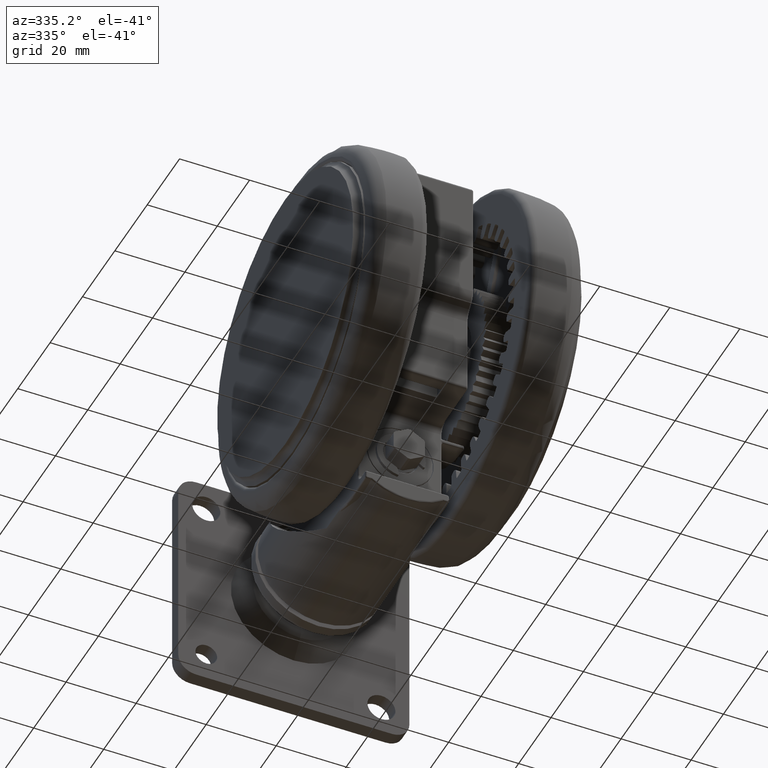
[diagram: clean part render]
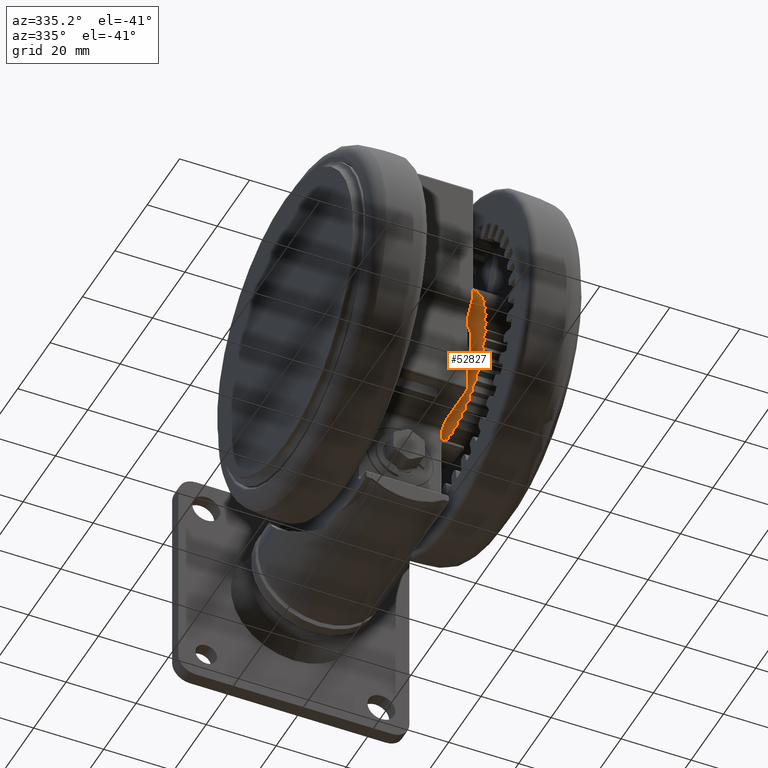
[diagram: same view with one face highlighted and labeled with its STEP entity id]
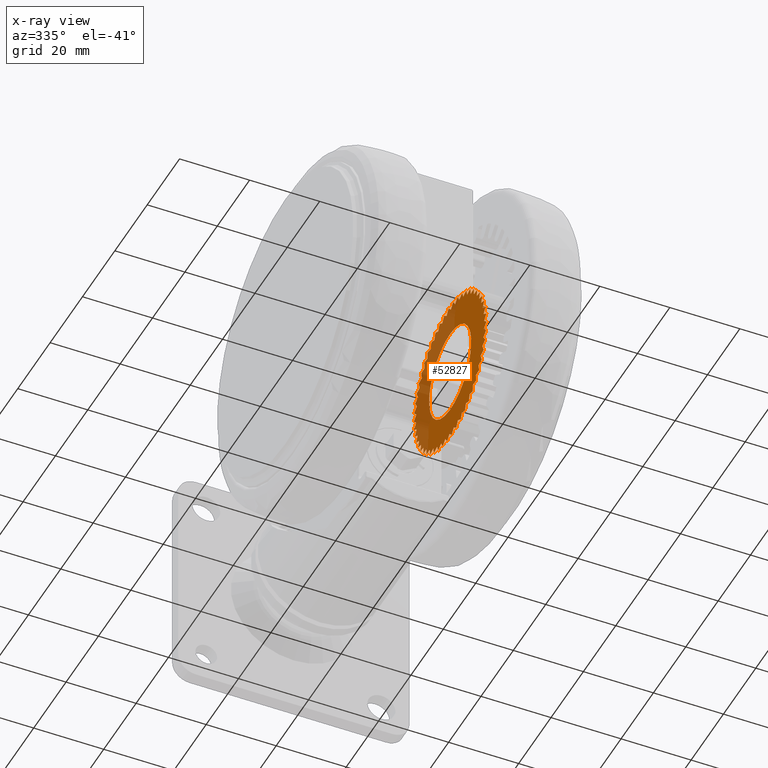
[diagram: x-ray of the same camera — body ghosted, the highlighted face saturated]
A machine part, auxiliary view. The second image highlights one B-rep face of the part: STEP entity #52827.
The next image is the same camera in x-ray: the body ghosted, the highlighted face saturated — about 39% of this face is hidden behind the body in this view.
In plain terms, the highlighted planar face has unit normal (-1, -0, 0).
Its self-contained STEP definition (entity closure, byte-faithful):
#135 = VERTEX_POINT ( 'NONE', #52497 ) ;
#155 = CARTESIAN_POINT ( 'NONE',  ( 13.50738607663565800, -5.605993558018629300, -18.09999999999995200 ) ) ;
#384 = VERTEX_POINT ( 'NONE', #72703 ) ;
#438 = LINE ( 'NONE', #78907, #32407 ) ;
#448 = ORIENTED_EDGE ( 'NONE', *, *, #42750, .T. ) ;
#469 = CARTESIAN_POINT ( 'NONE',  ( 11.68887279930216600, 8.789021280982762400, -18.09999999999995200 ) ) ;
#495 = VERTEX_POINT ( 'NONE', #53357 ) ;
#734 = EDGE_CURVE ( 'NONE', #45014, #51667, #5342, .T. ) ;
#833 = LINE ( 'NONE', #36704, #66923 ) ;
#927 = ORIENTED_EDGE ( 'NONE', *, *, #6779, .T. ) ;
#945 = LINE ( 'NONE', #72621, #67033 ) ;
#995 = LINE ( 'NONE', #58762, #82111 ) ;
#1018 = EDGE_CURVE ( 'NONE', #48748, #9041, #34206, .T. ) ;
#1027 = VECTOR ( 'NONE', #46402, 1000.000000000000100 ) ;
#1236 = CARTESIAN_POINT ( 'NONE',  ( -14.53732064245324000, -1.594663266755376200, -18.09999999999995200 ) ) ;
#1272 = ORIENTED_EDGE ( 'NONE', *, *, #54236, .T. ) ;
#1403 = VECTOR ( 'NONE', #9428, 1000.000000000000100 ) ;
#1488 = LINE ( 'NONE', #61659, #33455 ) ;
#1501 = VERTEX_POINT ( 'NONE', #49019 ) ;
#1621 = ORIENTED_EDGE ( 'NONE', *, *, #72191, .T. ) ;
#1730 = VERTEX_POINT ( 'NONE', #45075 ) ;
#1760 = ORIENTED_EDGE ( 'NONE', *, *, #37940, .F. ) ;
#1769 = ORIENTED_EDGE ( 'NONE', *, *, #26212, .T. ) ;
#1781 = DIRECTION ( 'NONE',  ( 0.7599523800599921100, -0.6499787535305698900, 0.0000000000000000000 ) ) ;
#1897 = VERTEX_POINT ( 'NONE', #78685 ) ;
#1903 = CARTESIAN_POINT ( 'NONE',  ( -3.469446951953614200E-015, -1.387778780781445700E-013, -18.09999999999995200 ) ) ;
#2053 = EDGE_CURVE ( 'NONE', #35573, #37455, #12220, .T. ) ;
#2101 = EDGE_CURVE ( 'NONE', #69640, #7843, #25235, .T. ) ;
#2153 = VERTEX_POINT ( 'NONE', #4806 ) ;
#2176 = DIRECTION ( 'NONE',  ( -0.0000000000000000000, 0.0000000000000000000, -1.000000000000000000 ) ) ;
#2186 = DIRECTION ( 'NONE',  ( -0.0000000000000000000, 0.0000000000000000000, -1.000000000000000000 ) ) ;
#2232 = ORIENTED_EDGE ( 'NONE', *, *, #10268, .T. ) ;
#2277 = CARTESIAN_POINT ( 'NONE',  ( -8.037727759365669300, -12.21767469128890800, -18.09999999999995200 ) ) ;
#2449 = VERTEX_POINT ( 'NONE', #33742 ) ;
#2491 = CARTESIAN_POINT ( 'NONE',  ( -3.469446951953614200E-015, -1.387778780781445700E-013, -18.09999999999995200 ) ) ;
#2513 = DIRECTION ( 'NONE',  ( -0.4960649668394147000, -0.8682854073832004800, 0.0000000000000000000 ) ) ;
#2586 = CARTESIAN_POINT ( 'NONE',  ( -19.00146984768217000, -8.941148898638728000, -18.09999999999995200 ) ) ;
#2606 = ORIENTED_EDGE ( 'NONE', *, *, #28074, .F. ) ;
#2638 = DIRECTION ( 'NONE',  ( 3.597816489175897900E-015, -1.000000000000000000, 0.0000000000000000000 ) ) ;
#2731 = ORIENTED_EDGE ( 'NONE', *, *, #36483, .F. ) ;
#2794 = CARTESIAN_POINT ( 'NONE',  ( 16.40179411698165200, -15.40230988339572900, -18.09999999999995200 ) ) ;
#2860 = EDGE_CURVE ( 'NONE', #1730, #8336, #51487, .T. ) ;
#2865 = ORIENTED_EDGE ( 'NONE', *, *, #7431, .T. ) ;
#2948 = CIRCLE ( 'NONE', #51711, 21.00000000000000000 ) ;
#3058 = ORIENTED_EDGE ( 'NONE', *, *, #58852, .T. ) ;
#3081 = EDGE_CURVE ( 'NONE', #37652, #40193, #78529, .T. ) ;
#3261 = AXIS2_PLACEMENT_3D ( 'NONE', #43998, #5737, #50435 ) ;
#3285 = CARTESIAN_POINT ( 'NONE',  ( -20.62798748604893700, -3.935242340111933000, -18.09999999999995200 ) ) ;
#3440 = CARTESIAN_POINT ( 'NONE',  ( -11.68887279930215500, 8.789021280982728600, -18.09999999999995200 ) ) ;
#3520 = DIRECTION ( 'NONE',  ( 0.2645463737174724700, -0.9643729652748128700, 0.0000000000000000000 ) ) ;
#3579 = VERTEX_POINT ( 'NONE', #28529 ) ;
#3608 = CIRCLE ( 'NONE', #4124, 21.00000000000000000 ) ;
#3718 = CARTESIAN_POINT ( 'NONE',  ( 20.62807704188491100, -3.934772871979098900, -18.09999999999995200 ) ) ;
#3766 = VERTEX_POINT ( 'NONE', #24082 ) ;
#3853 = VECTOR ( 'NONE', #23646, 1000.000000000000100 ) ;
#3925 = CARTESIAN_POINT ( 'NONE',  ( 21.79312112539422600, 5.595522461209030000, -18.09999999999995200 ) ) ;
#4017 = VECTOR ( 'NONE', #44294, 1000.000000000000000 ) ;
#4018 = CARTESIAN_POINT ( 'NONE',  ( -12.34368362556614500, 16.98921641959761800, -18.09999999999995200 ) ) ;
#4124 = AXIS2_PLACEMENT_3D ( 'NONE', #32802, #77636, #39219 ) ;
#4148 = VECTOR ( 'NONE', #81730, 999.9999999999998900 ) ;
#4223 = CARTESIAN_POINT ( 'NONE',  ( 5.222256170879929500, -20.34030581101752200, -18.09999999999995200 ) ) ;
#4225 = CARTESIAN_POINT ( 'NONE',  ( 10.82361990185118100, 9.834932364591219700, -18.09999999999995200 ) ) ;
#4262 = CARTESIAN_POINT ( 'NONE',  ( -3.469446951953614200E-015, -1.387778780781445700E-013, -18.09999999999995200 ) ) ;
#4322 = CARTESIAN_POINT ( 'NONE',  ( 19.71690030098688200, -10.83945766728880900, -18.09999999999995200 ) ) ;
#4340 = VERTEX_POINT ( 'NONE', #57266 ) ;
#4355 = VERTEX_POINT ( 'NONE', #63988 ) ;
#4441 = CARTESIAN_POINT ( 'NONE',  ( -3.469446951953614200E-015, -1.387778780781445700E-013, -18.09999999999995200 ) ) ;
#4583 = EDGE_CURVE ( 'NONE', #10637, #35355, #61283, .T. ) ;
#4594 = VECTOR ( 'NONE', #19370, 999.9999999999998900 ) ;
#4770 = LINE ( 'NONE', #59768, #36697 ) ;
#4779 = CARTESIAN_POINT ( 'NONE',  ( -6.443067199534176800, -13.12872908769642200, -18.09999999999995200 ) ) ;
#4806 = CARTESIAN_POINT ( 'NONE',  ( 12.05610288702730400, -18.99737832379554400, -18.09999999999995200 ) ) ;
#4822 = CARTESIAN_POINT ( 'NONE',  ( -20.91997093248572500, -8.282802435405193000, -18.09999999999995200 ) ) ;
#4833 = CARTESIAN_POINT ( 'NONE',  ( -20.91997093248568600, 8.282802435405056200, -18.09999999999995200 ) ) ;
#4839 = LINE ( 'NONE', #43628, #36765 ) ;
#4906 = EDGE_CURVE ( 'NONE', #1501, #36122, #56208, .T. ) ;
#4934 = AXIS2_PLACEMENT_3D ( 'NONE', #33866, #78710, #40283 ) ;
#4964 = CARTESIAN_POINT ( 'NONE',  ( -2.632234987181233600, 20.83437877576994900, -18.09999999999995200 ) ) ;
#5007 = CARTESIAN_POINT ( 'NONE',  ( -3.469446951953614200E-015, -1.387778780781445700E-013, -18.09999999999995200 ) ) ;
#5021 = EDGE_CURVE ( 'NONE', #52361, #11531, #31133, .T. ) ;
#5121 = DIRECTION ( 'NONE',  ( 3.597816489175897900E-015, -1.000000000000000000, 0.0000000000000000000 ) ) ;
#5251 = ORIENTED_EDGE ( 'NONE', *, *, #76017, .T. ) ;
#5342 = CIRCLE ( 'NONE', #44730, 13.00000000000000000 ) ;
#5371 = ORIENTED_EDGE ( 'NONE', *, *, #12744, .F. ) ;
#5383 = ORIENTED_EDGE ( 'NONE', *, *, #41850, .T. ) ;
#5414 = EDGE_CURVE ( 'NONE', #80669, #18686, #54097, .T. ) ;
#5737 = DIRECTION ( 'NONE',  ( -0.0000000000000000000, 0.0000000000000000000, -1.000000000000000000 ) ) ;
#5801 = VERTEX_POINT ( 'NONE', #12897 ) ;
#5910 = VERTEX_POINT ( 'NONE', #32979 ) ;
#5913 = EDGE_CURVE ( 'NONE', #38443, #53812, #995, .T. ) ;
#5924 = VERTEX_POINT ( 'NONE', #78092 ) ;
#5973 = VERTEX_POINT ( 'NONE', #34059 ) ;
#5977 = DIRECTION ( 'NONE',  ( 0.1415923644446550300, 0.9899250488450992400, 0.0000000000000000000 ) ) ;
#6006 = VECTOR ( 'NONE', #69593, 1000.000000000000100 ) ;
#6011 = EDGE_CURVE ( 'NONE', #14404, #54596, #7926, .T. ) ;
#6039 = DIRECTION ( 'NONE',  ( -0.0000000000000000000, 0.0000000000000000000, -1.000000000000000000 ) ) ;
#6147 = CARTESIAN_POINT ( 'NONE',  ( 16.18062577405629600, 13.38608791095968100, -18.09999999999995200 ) ) ;
#6191 = VECTOR ( 'NONE', #60997, 1000.000000000000000 ) ;
#6240 = DIRECTION ( 'NONE',  ( 3.597816489175897900E-015, -1.000000000000000000, 0.0000000000000000000 ) ) ;
#6408 = DIRECTION ( 'NONE',  ( 3.597816489175897900E-015, -1.000000000000000000, 0.0000000000000000000 ) ) ;
#6457 = VECTOR ( 'NONE', #20409, 1000.000000000000000 ) ;
#6496 = CARTESIAN_POINT ( 'NONE',  ( -12.92942419941392800, 6.834225067075563800, -18.09999999999995200 ) ) ;
#6629 = ORIENTED_EDGE ( 'NONE', *, *, #57507, .T. ) ;
#6644 = LINE ( 'NONE', #18100, #21634 ) ;
#6655 = DIRECTION ( 'NONE',  ( -0.2327664647555010800, 0.9725326590327062500, 0.0000000000000000000 ) ) ;
#6711 = VECTOR ( 'NONE', #71910, 1000.000000000000200 ) ;
#6761 = LINE ( 'NONE', #60212, #72834 ) ;
#6779 = EDGE_CURVE ( 'NONE', #80729, #81442, #833, .T. ) ;
#6785 = DIRECTION ( 'NONE',  ( -0.7808667188357941700, 0.6246976608045053900, 0.0000000000000000000 ) ) ;
#6889 = ORIENTED_EDGE ( 'NONE', *, *, #55521, .F. ) ;
#6957 = AXIS2_PLACEMENT_3D ( 'NONE', #4441, #49122, #10837 ) ;
#6977 = CARTESIAN_POINT ( 'NONE',  ( -12.05610288702747100, 18.99737832379521800, -18.09999999999995200 ) ) ;
#6979 = CARTESIAN_POINT ( 'NONE',  ( 13.50738607663571700, 5.605993558018279400, -18.09999999999995200 ) ) ;
#6988 = CARTESIAN_POINT ( 'NONE',  ( -3.469446951953614200E-015, -1.387778780781445700E-013, -18.09999999999995200 ) ) ;
#6998 = LINE ( 'NONE', #69337, #71092 ) ;
#7148 = CIRCLE ( 'NONE', #9953, 21.00000000000000000 ) ;
#7165 = LINE ( 'NONE', #46671, #20159 ) ;
#7193 = EDGE_CURVE ( 'NONE', #32259, #41576, #6761, .T. ) ;
#7249 = DIRECTION ( 'NONE',  ( 0.3833283286444277300, -0.9236121439536564300, 0.0000000000000000000 ) ) ;
#7338 = ORIENTED_EDGE ( 'NONE', *, *, #64399, .T. ) ;
#7420 = ORIENTED_EDGE ( 'NONE', *, *, #8650, .T. ) ;
#7431 = EDGE_CURVE ( 'NONE', #31773, #54996, #26709, .T. ) ;
#7701 = ORIENTED_EDGE ( 'NONE', *, *, #60542, .T. ) ;
#7712 = CIRCLE ( 'NONE', #24325, 21.00000000000000000 ) ;
#7718 = VERTEX_POINT ( 'NONE', #9488 ) ;
#7729 = VERTEX_POINT ( 'NONE', #60429 ) ;
#7843 = VERTEX_POINT ( 'NONE', #61550 ) ;
#7879 = VECTOR ( 'NONE', #34472, 1000.000000000000000 ) ;
#7926 = LINE ( 'NONE', #59840, #74050 ) ;
#8124 = ORIENTED_EDGE ( 'NONE', *, *, #18368, .T. ) ;
#8141 = CARTESIAN_POINT ( 'NONE',  ( -12.69825900299371700, -7.254712998370595600, -18.09999999999995200 ) ) ;
#8215 = EDGE_CURVE ( 'NONE', #68575, #71648, #19584, .T. ) ;
#8297 = DIRECTION ( 'NONE',  ( 3.597816489175897900E-015, -1.000000000000000000, 0.0000000000000000000 ) ) ;
#8329 = LINE ( 'NONE', #12809, #23382 ) ;
#8336 = VERTEX_POINT ( 'NONE', #69587 ) ;
#8385 = CARTESIAN_POINT ( 'NONE',  ( 11.68887279930208900, -8.789021280983096300, -18.09999999999995200 ) ) ;
#8463 = CIRCLE ( 'NONE', #50863, 21.00000000000000000 ) ;
#8642 = ORIENTED_EDGE ( 'NONE', *, *, #34829, .T. ) ;
#8650 = EDGE_CURVE ( 'NONE', #384, #64550, #54708, .T. ) ;
#8704 = ORIENTED_EDGE ( 'NONE', *, *, #66475, .F. ) ;
#8736 = VECTOR ( 'NONE', #59356, 1000.000000000000200 ) ;
#8853 = CARTESIAN_POINT ( 'NONE',  ( -3.469446951953614200E-015, -1.387778780781445700E-013, -18.09999999999995200 ) ) ;
#8871 = VECTOR ( 'NONE', #65666, 1000.000000000000000 ) ;
#8903 = DIRECTION ( 'NONE',  ( 3.597816489175897900E-015, -1.000000000000000000, 0.0000000000000000000 ) ) ;
#8947 = CARTESIAN_POINT ( 'NONE',  ( -21.79312112539422600, 5.595522461209023700, -18.09999999999995200 ) ) ;
#9041 = VERTEX_POINT ( 'NONE', #14609 ) ;
#9081 = CARTESIAN_POINT ( 'NONE',  ( 19.00146984768211700, 8.941148898638587600, -18.09999999999995200 ) ) ;
#9120 = ORIENTED_EDGE ( 'NONE', *, *, #56713, .T. ) ;
#9126 = VECTOR ( 'NONE', #62894, 1000.000000000000100 ) ;
#9175 = DIRECTION ( 'NONE',  ( -0.0000000000000000000, 0.0000000000000000000, -1.000000000000000000 ) ) ;
#9415 = DIRECTION ( 'NONE',  ( 0.9852291152350595200, 0.1712413223878559200, 0.0000000000000000000 ) ) ;
#9420 = DIRECTION ( 'NONE',  ( -0.0000000000000000000, 0.0000000000000000000, -1.000000000000000000 ) ) ;
#9428 = DIRECTION ( 'NONE',  ( -0.7599523800599863300, -0.6499787535305766600, 0.0000000000000000000 ) ) ;
#9447 = VECTOR ( 'NONE', #34640, 1000.000000000000000 ) ;
#9488 = CARTESIAN_POINT ( 'NONE',  ( 20.62798748604888000, 3.935242340111810400, -18.09999999999995200 ) ) ;
#9624 = EDGE_CURVE ( 'NONE', #69936, #46778, #7148, .T. ) ;
#9700 = VERTEX_POINT ( 'NONE', #2794 ) ;
#9730 = AXIS2_PLACEMENT_3D ( 'NONE', #40427, #2176, #46857 ) ;
#9813 = CARTESIAN_POINT ( 'NONE',  ( -3.469446951953614200E-015, -1.387778780781445700E-013, -18.09999999999995200 ) ) ;
#9881 = ORIENTED_EDGE ( 'NONE', *, *, #54386, .F. ) ;
#9953 = AXIS2_PLACEMENT_3D ( 'NONE', #66058, #27642, #72463 ) ;
#10033 = CARTESIAN_POINT ( 'NONE',  ( -3.469446951953614200E-015, -1.387778780781445700E-013, -18.09999999999995200 ) ) ;
#10194 = EDGE_CURVE ( 'NONE', #49484, #50921, #32198, .T. ) ;
#10219 = CARTESIAN_POINT ( 'NONE',  ( -13.68402735433256400, 5.159848618100462600, -18.09999999999995200 ) ) ;
#10268 = EDGE_CURVE ( 'NONE', #19316, #38184, #43176, .T. ) ;
#10307 = CARTESIAN_POINT ( 'NONE',  ( 6.443067199534080900, 13.12872908769620400, -18.09999999999995200 ) ) ;
#10339 = CARTESIAN_POINT ( 'NONE',  ( -3.469446951953614200E-015, -1.387778780781445700E-013, -18.09999999999995200 ) ) ;
#10369 = CARTESIAN_POINT ( 'NONE',  ( -10.11703656370699100, 18.40232515658307800, -18.09999999999995200 ) ) ;
#10637 = VERTEX_POINT ( 'NONE', #50710 ) ;
#10652 = DIRECTION ( 'NONE',  ( 3.597816489175897900E-015, -1.000000000000000000, 0.0000000000000000000 ) ) ;
#10757 = LINE ( 'NONE', #8141, #8736 ) ;
#10837 = DIRECTION ( 'NONE',  ( 3.597816489175897900E-015, -1.000000000000000000, 0.0000000000000000000 ) ) ;
#10843 = CIRCLE ( 'NONE', #39215, 21.00000000000000000 ) ;
#10872 = VECTOR ( 'NONE', #76781, 1000.000000000000200 ) ;
#10896 = LINE ( 'NONE', #20856, #8871 ) ;
#10971 = CARTESIAN_POINT ( 'NONE',  ( -7.730393420141983700, 19.52539417194493500, -18.09999999999995200 ) ) ;
#11060 = VERTEX_POINT ( 'NONE', #24620 ) ;
#11156 = VERTEX_POINT ( 'NONE', #6977 ) ;
#11185 = CARTESIAN_POINT ( 'NONE',  ( -1.157604856398136000, 14.57863482608285800, -18.09999999999995200 ) ) ;
#11291 = AXIS2_PLACEMENT_3D ( 'NONE', #10339, #55116, #16764 ) ;
#11313 = VERTEX_POINT ( 'NONE', #78874 ) ;
#11391 = DIRECTION ( 'NONE',  ( 3.597816489175897900E-015, -1.000000000000000000, 0.0000000000000000000 ) ) ;
#11478 = ORIENTED_EDGE ( 'NONE', *, *, #34847, .T. ) ;
#11494 = DIRECTION ( 'NONE',  ( -0.9116903457277391000, -0.4108779788536196000, 0.0000000000000000000 ) ) ;
#11531 = VERTEX_POINT ( 'NONE', #17552 ) ;
#11560 = AXIS2_PLACEMENT_3D ( 'NONE', #5007, #49671, #11391 ) ;
#11634 = ORIENTED_EDGE ( 'NONE', *, *, #64587, .T. ) ;
#11700 = DIRECTION ( 'NONE',  ( -0.8530047293528760800, 0.5219031823064759200, 0.0000000000000000000 ) ) ;
#11731 = ORIENTED_EDGE ( 'NONE', *, *, #26974, .T. ) ;
#11909 = EDGE_CURVE ( 'NONE', #41096, #135, #58955, .T. ) ;
#11963 = VECTOR ( 'NONE', #51268, 1000.000000000000100 ) ;
#12220 = LINE ( 'NONE', #22710, #78321 ) ;
#12236 = VERTEX_POINT ( 'NONE', #13244 ) ;
#12317 = ORIENTED_EDGE ( 'NONE', *, *, #35850, .T. ) ;
#12516 = CARTESIAN_POINT ( 'NONE',  ( 14.34203976934541700, -17.33654796245548700, -18.09999999999995200 ) ) ;
#12597 = CARTESIAN_POINT ( 'NONE',  ( -13.68402735433258500, -5.159848618100658000, -18.09999999999995200 ) ) ;
#12604 = EDGE_CURVE ( 'NONE', #9700, #23484, #29785, .T. ) ;
#12641 = LINE ( 'NONE', #27615, #44624 ) ;
#12744 = EDGE_CURVE ( 'NONE', #3766, #19005, #19764, .T. ) ;
#12751 = CIRCLE ( 'NONE', #25962, 21.00000000000000000 ) ;
#12809 = CARTESIAN_POINT ( 'NONE',  ( 14.22282522343166500, 3.404098274073572600, -18.09999999999995200 ) ) ;
#12897 = CARTESIAN_POINT ( 'NONE',  ( -17.73075838956596300, -11.25256446019484200, -18.09999999999995200 ) ) ;
#12907 = CIRCLE ( 'NONE', #45333, 21.00000000000000000 ) ;
#12936 = CARTESIAN_POINT ( 'NONE',  ( -2.975664240051790500, 14.31859157620991100, -18.09999999999995200 ) ) ;
#12999 = DIRECTION ( 'NONE',  ( -0.0000000000000000000, 0.0000000000000000000, -1.000000000000000000 ) ) ;
#13011 = DIRECTION ( 'NONE',  ( -0.0000000000000000000, 0.0000000000000000000, -1.000000000000000000 ) ) ;
#13134 = ORIENTED_EDGE ( 'NONE', *, *, #16021, .F. ) ;
#13164 = ORIENTED_EDGE ( 'NONE', *, *, #65807, .F. ) ;
#13244 = CARTESIAN_POINT ( 'NONE',  ( 6.952882373436329600, 21.39877161664083600, -18.09999999999995200 ) ) ;
#13246 = VECTOR ( 'NONE', #37352, 1000.000000000000100 ) ;
#13268 = CARTESIAN_POINT ( 'NONE',  ( 20.91997093248566500, 8.282802435405056200, -18.09999999999995200 ) ) ;
#13327 = ORIENTED_EDGE ( 'NONE', *, *, #69391, .T. ) ;
#13386 = AXIS2_PLACEMENT_3D ( 'NONE', #63425, #25050, #69822 ) ;
#13421 = DIRECTION ( 'NONE',  ( 3.597816489175897900E-015, -1.000000000000000000, 0.0000000000000000000 ) ) ;
#13480 = CARTESIAN_POINT ( 'NONE',  ( -3.469446951953614200E-015, -1.387778780781445700E-013, -18.09999999999995200 ) ) ;
#13790 = VERTEX_POINT ( 'NONE', #72959 ) ;
#13802 = EDGE_CURVE ( 'NONE', #54996, #50595, #21604, .T. ) ;
#13874 = LINE ( 'NONE', #44229, #62992 ) ;
#13898 = AXIS2_PLACEMENT_3D ( 'NONE', #27358, #72182, #33778 ) ;
#13921 = VECTOR ( 'NONE', #51666, 1000.000000000000100 ) ;
#13952 = ORIENTED_EDGE ( 'NONE', *, *, #6011, .T. ) ;
#14282 = CARTESIAN_POINT ( 'NONE',  ( -4.746795621064173100, 13.83273558366814400, -18.09999999999995200 ) ) ;
#14384 = ORIENTED_EDGE ( 'NONE', *, *, #48134, .F. ) ;
#14404 = VERTEX_POINT ( 'NONE', #55498 ) ;
#14521 = ORIENTED_EDGE ( 'NONE', *, *, #46864, .T. ) ;
#14606 = VECTOR ( 'NONE', #33772, 1000.000000000000100 ) ;
#14609 = CARTESIAN_POINT ( 'NONE',  ( -20.62807704188494300, -3.934772871978803100, -18.09999999999995200 ) ) ;
#14748 = VECTOR ( 'NONE', #37662, 1000.000000000000100 ) ;
#14863 = VERTEX_POINT ( 'NONE', #22709 ) ;
#14981 = ORIENTED_EDGE ( 'NONE', *, *, #24344, .F. ) ;
#15054 = VECTOR ( 'NONE', #47621, 1000.000000000000100 ) ;
#15125 = CARTESIAN_POINT ( 'NONE',  ( 6.952882373436183100, -21.39877161664116300, -18.09999999999995200 ) ) ;
#15195 = VECTOR ( 'NONE', #48672, 999.9999999999998900 ) ;
#15240 = VECTOR ( 'NONE', #30998, 1000.000000000000100 ) ;
#15244 = DIRECTION ( 'NONE',  ( -0.7599523800599921100, 0.6499787535305698900, 0.0000000000000000000 ) ) ;
#15288 = DIRECTION ( 'NONE',  ( 3.597816489175897900E-015, -1.000000000000000000, 0.0000000000000000000 ) ) ;
#15425 = ORIENTED_EDGE ( 'NONE', *, *, #77624, .T. ) ;
#15427 = ORIENTED_EDGE ( 'NONE', *, *, #32334, .F. ) ;
#15436 = CARTESIAN_POINT ( 'NONE',  ( -3.469446951953614200E-015, -1.387778780781445700E-013, -18.09999999999995200 ) ) ;
#15489 = ORIENTED_EDGE ( 'NONE', *, *, #64030, .T. ) ;
#15529 = VECTOR ( 'NONE', #35021, 1000.000000000000000 ) ;
#15581 = VERTEX_POINT ( 'NONE', #2586 ) ;
#15600 = CARTESIAN_POINT ( 'NONE',  ( -14.62255383076894300, 0.2399205328856041400, -18.09999999999995200 ) ) ;
#15635 = EDGE_CURVE ( 'NONE', #66015, #22071, #27209, .T. ) ;
#15668 = CARTESIAN_POINT ( 'NONE',  ( -14.47718061008316900, 2.070720642401384200, -18.09999999999995200 ) ) ;
#15778 = EDGE_CURVE ( 'NONE', #78379, #57158, #49201, .T. ) ;
#15786 = CIRCLE ( 'NONE', #9730, 21.00000000000000000 ) ;
#15840 = VERTEX_POINT ( 'NONE', #62449 ) ;
#15848 = ORIENTED_EDGE ( 'NONE', *, *, #48569, .F. ) ;
#15940 = CIRCLE ( 'NONE', #64661, 21.00000000000000000 ) ;
#16021 = EDGE_CURVE ( 'NONE', #63650, #18686, #37145, .T. ) ;
#16190 = DIRECTION ( 'NONE',  ( -0.6009783641724937300, 0.7992652912497535400, 0.0000000000000000000 ) ) ;
#16255 = DIRECTION ( 'NONE',  ( 3.597816489175897900E-015, -1.000000000000000000, 0.0000000000000000000 ) ) ;
#16321 = CARTESIAN_POINT ( 'NONE',  ( 2.632234987181086600, -20.83437877577022600, -18.09999999999995200 ) ) ;
#16368 = CARTESIAN_POINT ( 'NONE',  ( 14.37531502425256100, 15.30850475890751400, -18.09999999999995200 ) ) ;
#16455 = LINE ( 'NONE', #4225, #31427 ) ;
#16492 = LINE ( 'NONE', #74746, #31475 ) ;
#16530 = VECTOR ( 'NONE', #70027, 1000.000000000000000 ) ;
#16665 = VERTEX_POINT ( 'NONE', #48520 ) ;
#16764 = DIRECTION ( 'NONE',  ( 3.597816489175897900E-015, -1.000000000000000000, 0.0000000000000000000 ) ) ;
#16818 = CARTESIAN_POINT ( 'NONE',  ( -8.037727759365617800, 12.21767469128869100, -18.09999999999995200 ) ) ;
#16955 = LINE ( 'NONE', #31437, #68055 ) ;
#16999 = ORIENTED_EDGE ( 'NONE', *, *, #22133, .T. ) ;
#17019 = DIRECTION ( 'NONE',  ( -0.8977202214608014400, 0.4405660041133107600, 0.0000000000000000000 ) ) ;
#17040 = EDGE_CURVE ( 'NONE', #69293, #5924, #25013, .T. ) ;
#17243 = ORIENTED_EDGE ( 'NONE', *, *, #2101, .T. ) ;
#17295 = EDGE_CURVE ( 'NONE', #7718, #48145, #2948, .T. ) ;
#17338 = EDGE_CURVE ( 'NONE', #20546, #45812, #15940, .T. ) ;
#17357 = CIRCLE ( 'NONE', #51152, 21.00000000000000000 ) ;
#17392 = CARTESIAN_POINT ( 'NONE',  ( 14.53732064245325100, 1.594663266754988700, -18.09999999999995200 ) ) ;
#17552 = CARTESIAN_POINT ( 'NONE',  ( -19.97211299609482500, 6.489584152410628800, -18.09999999999995200 ) ) ;
#17572 = DIRECTION ( 'NONE',  ( 0.5744339357106679200, 0.8185509474088661400, 0.0000000000000000000 ) ) ;
#17580 = CARTESIAN_POINT ( 'NONE',  ( -3.469446951953614200E-015, -1.387778780781445700E-013, -18.09999999999995200 ) ) ;
#17588 = ORIENTED_EDGE ( 'NONE', *, *, #29290, .F. ) ;
#17601 = CIRCLE ( 'NONE', #4934, 21.00000000000000000 ) ;
#17667 = ORIENTED_EDGE ( 'NONE', *, *, #77476, .T. ) ;
#17762 = ORIENTED_EDGE ( 'NONE', *, *, #29878, .T. ) ;
#17793 = DIRECTION ( 'NONE',  ( -0.0000000000000000000, 0.0000000000000000000, -1.000000000000000000 ) ) ;
#17921 = ORIENTED_EDGE ( 'NONE', *, *, #58314, .T. ) ;
#18019 = LINE ( 'NONE', #35443, #32968 ) ;
#18044 = LINE ( 'NONE', #14282, #1027 ) ;
#18100 = CARTESIAN_POINT ( 'NONE',  ( -0.6787106473605640800, 14.60876429589412100, -18.09999999999995200 ) ) ;
#18162 = DIRECTION ( 'NONE',  ( 0.8530047293528794100, -0.5219031823064705900, 0.0000000000000000000 ) ) ;
#18319 = LINE ( 'NONE', #6496, #65364 ) ;
#18330 = ORIENTED_EDGE ( 'NONE', *, *, #21145, .T. ) ;
#18368 = EDGE_CURVE ( 'NONE', #50967, #11060, #12907, .T. ) ;
#18449 = CARTESIAN_POINT ( 'NONE',  ( -14.34203976934566100, -17.33654796245528800, -18.09999999999995200 ) ) ;
#18686 = VERTEX_POINT ( 'NONE', #40616 ) ;
#18699 = CARTESIAN_POINT ( 'NONE',  ( -3.469446951953614200E-015, -1.387778780781445700E-013, -18.09999999999995200 ) ) ;
#18992 = DIRECTION ( 'NONE',  ( 0.6964139736955096100, -0.7176402840153485200, 0.0000000000000000000 ) ) ;
#19005 = VERTEX_POINT ( 'NONE', #31121 ) ;
#19095 = VERTEX_POINT ( 'NONE', #52869 ) ;
#19142 = CARTESIAN_POINT ( 'NONE',  ( 5.222719089367604500, 20.34018695375117900, -18.09999999999995200 ) ) ;
#19145 = LINE ( 'NONE', #36849, #4148 ) ;
#19197 = VERTEX_POINT ( 'NONE', #28517 ) ;
#19199 = CARTESIAN_POINT ( 'NONE',  ( 0.0002389668258829626500, -20.99999999864048700, -18.09999999999995200 ) ) ;
#19204 = LINE ( 'NONE', #10219, #68272 ) ;
#19272 = ORIENTED_EDGE ( 'NONE', *, *, #28734, .F. ) ;
#19316 = VERTEX_POINT ( 'NONE', #42769 ) ;
#19324 = CARTESIAN_POINT ( 'NONE',  ( -3.469446951953614200E-015, -1.387778780781445700E-013, -18.09999999999995200 ) ) ;
#19370 = DIRECTION ( 'NONE',  ( 0.9790809997632079500, 0.2034708723691854600, 0.0000000000000000000 ) ) ;
#19584 = LINE ( 'NONE', #10307, #51576 ) ;
#19752 = LINE ( 'NONE', #15600, #47729 ) ;
#19764 = LINE ( 'NONE', #12597, #36730 ) ;
#19798 = CARTESIAN_POINT ( 'NONE',  ( -14.10349360292790900, -3.868864250398154500, -18.09999999999995200 ) ) ;
#19863 = VERTEX_POINT ( 'NONE', #42947 ) ;
#19893 = DIRECTION ( 'NONE',  ( -0.0000000000000000000, 0.0000000000000000000, -1.000000000000000000 ) ) ;
#19907 = DIRECTION ( 'NONE',  ( 3.597816489175897900E-015, -1.000000000000000000, 0.0000000000000000000 ) ) ;
#19935 = EDGE_CURVE ( 'NONE', #21495, #68184, #6644, .T. ) ;
#19964 = CARTESIAN_POINT ( 'NONE',  ( 9.580034060214153200, 20.35860868048529700, -18.09999999999995200 ) ) ;
#20159 = VECTOR ( 'NONE', #72490, 1000.000000000000000 ) ;
#20311 = EDGE_CURVE ( 'NONE', #48671, #42280, #29576, .T. ) ;
#20409 = DIRECTION ( 'NONE',  ( 0.8530047293528823000, 0.5219031823064656000, 0.0000000000000000000 ) ) ;
#20437 = VECTOR ( 'NONE', #81420, 1000.000000000000100 ) ;
#20546 = VERTEX_POINT ( 'NONE', #61814 ) ;
#20629 = VECTOR ( 'NONE', #29241, 1000.000000000000100 ) ;
#20653 = CARTESIAN_POINT ( 'NONE',  ( -7.730837791613633500, -19.52521823283326400, -18.09999999999995200 ) ) ;
#20665 = FACE_OUTER_BOUND ( 'NONE', #43216, .T. ) ;
#20800 = CIRCLE ( 'NONE', #63638, 21.00000000000000000 ) ;
#20854 = CARTESIAN_POINT ( 'NONE',  ( -3.469446951953614200E-015, -1.387778780781445700E-013, -18.09999999999995200 ) ) ;
#20856 = CARTESIAN_POINT ( 'NONE',  ( -14.62255383076896300, -0.2399205328858064200, -18.09999999999995200 ) ) ;
#20882 = EDGE_CURVE ( 'NONE', #54596, #50625, #8463, .T. ) ;
#21012 = CIRCLE ( 'NONE', #6957, 21.00000000000000000 ) ;
#21145 = EDGE_CURVE ( 'NONE', #53165, #21976, #50444, .T. ) ;
#21320 = CARTESIAN_POINT ( 'NONE',  ( -3.469446951953614200E-015, -1.387778780781445700E-013, -18.09999999999995200 ) ) ;
#21399 = CARTESIAN_POINT ( 'NONE',  ( -3.469446951953614200E-015, -1.387778780781445700E-013, -18.09999999999995200 ) ) ;
#21426 = CARTESIAN_POINT ( 'NONE',  ( 12.34329696911941500, 16.98949734194990700, -18.09999999999995200 ) ) ;
#21445 = CARTESIAN_POINT ( 'NONE',  ( 16.18093042043154400, -13.38571965675198100, -18.09999999999995200 ) ) ;
#21495 = VERTEX_POINT ( 'NONE', #47880 ) ;
#21547 = CARTESIAN_POINT ( 'NONE',  ( 20.62807704188493600, 3.934772871978680500, -18.09999999999995200 ) ) ;
#21589 = LINE ( 'NONE', #1236, #55661 ) ;
#21604 = CIRCLE ( 'NONE', #71416, 21.00000000000000000 ) ;
#21610 = VECTOR ( 'NONE', #16190, 1000.000000000000100 ) ;
#21634 = VECTOR ( 'NONE', #62876, 1000.000000000000100 ) ;
#21871 = DIRECTION ( 'NONE',  ( 0.9116903457277421000, 0.4108779788536131000, 0.0000000000000000000 ) ) ;
#21889 = DIRECTION ( 'NONE',  ( 3.597816489175897900E-015, -1.000000000000000000, 0.0000000000000000000 ) ) ;
#21927 = VECTOR ( 'NONE', #9415, 1000.000000000000100 ) ;
#21956 = DIRECTION ( 'NONE',  ( -0.3833283286444206800, 0.9236121439536593100, 0.0000000000000000000 ) ) ;
#21976 = VERTEX_POINT ( 'NONE', #66614 ) ;
#21997 = CARTESIAN_POINT ( 'NONE',  ( 12.34368362556613600, 16.98921641959765700, -18.09999999999995200 ) ) ;
#22071 = VERTEX_POINT ( 'NONE', #41897 ) ;
#22090 = CIRCLE ( 'NONE', #34217, 21.00000000000000000 ) ;
#22112 = CARTESIAN_POINT ( 'NONE',  ( -3.469446951953614200E-015, -1.387778780781445700E-013, -18.09999999999995200 ) ) ;
#22133 = EDGE_CURVE ( 'NONE', #7729, #15840, #35259, .T. ) ;
#22184 = VECTOR ( 'NONE', #18992, 1000.000000000000100 ) ;
#22206 = EDGE_CURVE ( 'NONE', #37455, #66530, #68896, .T. ) ;
#22253 = EDGE_CURVE ( 'NONE', #42815, #26073, #49805, .T. ) ;
#22370 = CARTESIAN_POINT ( 'NONE',  ( 10.11703656370686300, -18.40232515658345100, -18.09999999999995200 ) ) ;
#22430 = ORIENTED_EDGE ( 'NONE', *, *, #55143, .T. ) ;
#22481 = CARTESIAN_POINT ( 'NONE',  ( -3.469446951953614200E-015, -1.387778780781445700E-013, -18.09999999999995200 ) ) ;
#22536 = CARTESIAN_POINT ( 'NONE',  ( 6.443067199534013400, -13.12872908769651700, -18.09999999999995200 ) ) ;
#22540 = CARTESIAN_POINT ( 'NONE',  ( -3.469446951953614200E-015, -1.387778780781445700E-013, -18.09999999999995200 ) ) ;
#22665 = CARTESIAN_POINT ( 'NONE',  ( 0.6787106473604501700, -14.60876429589441700, -18.09999999999995200 ) ) ;
#22702 = EDGE_CURVE ( 'NONE', #2153, #29460, #51741, .T. ) ;
#22709 = CARTESIAN_POINT ( 'NONE',  ( -20.95854629078560200, -1.318839405309724100, -18.09999999999995200 ) ) ;
#22710 = CARTESIAN_POINT ( 'NONE',  ( -2.504322478768356200, -14.40850482590666600, -18.09999999999995200 ) ) ;
#22786 = ORIENTED_EDGE ( 'NONE', *, *, #23049, .T. ) ;
#22894 = ORIENTED_EDGE ( 'NONE', *, *, #2860, .T. ) ;
#22919 = PLANE ( 'NONE',  #45834 ) ;
#22925 = ORIENTED_EDGE ( 'NONE', *, *, #44897, .T. ) ;
#22947 = CARTESIAN_POINT ( 'NONE',  ( -7.632584547731998000, 12.47478639166037200, -18.09999999999995200 ) ) ;
#22996 = VERTEX_POINT ( 'NONE', #70521 ) ;
#23049 = EDGE_CURVE ( 'NONE', #12236, #16665, #82825, .T. ) ;
#23062 = AXIS2_PLACEMENT_3D ( 'NONE', #4262, #48931, #10652 ) ;
#23147 = ORIENTED_EDGE ( 'NONE', *, *, #56242, .T. ) ;
#23244 = VECTOR ( 'NONE', #74486, 1000.000000000000200 ) ;
#23307 = CIRCLE ( 'NONE', #65406, 21.00000000000000000 ) ;
#23382 = VECTOR ( 'NONE', #6655, 999.9999999999998900 ) ;
#23484 = VERTEX_POINT ( 'NONE', #33693 ) ;
#23504 = DIRECTION ( 'NONE',  ( -0.6724959896283584400, 0.7401007660675502600, 0.0000000000000000000 ) ) ;
#23511 = DIRECTION ( 'NONE',  ( 0.6724959896283672100, 0.7401007660675422700, 0.0000000000000000000 ) ) ;
#23534 = CARTESIAN_POINT ( 'NONE',  ( 14.22282522343166800, -3.404098274073942900, -18.09999999999995200 ) ) ;
#23612 = EDGE_CURVE ( 'NONE', #16665, #82069, #7712, .T. ) ;
#23632 = VERTEX_POINT ( 'NONE', #74035 ) ;
#23646 = DIRECTION ( 'NONE',  ( -0.6964139736955039500, 0.7176402840153539600, 0.0000000000000000000 ) ) ;
#23791 = ORIENTED_EDGE ( 'NONE', *, *, #68306, .T. ) ;
#23841 = CARTESIAN_POINT ( 'NONE',  ( -3.469446951953614200E-015, -1.387778780781445700E-013, -18.09999999999995200 ) ) ;
#23889 = VERTEX_POINT ( 'NONE', #44821 ) ;
#23919 = DIRECTION ( 'NONE',  ( -0.9968623160129358500, -0.07915505614504829400, 0.0000000000000000000 ) ) ;
#24035 = DIRECTION ( 'NONE',  ( 3.597816489175897900E-015, -1.000000000000000000, 0.0000000000000000000 ) ) ;
#24072 = ORIENTED_EDGE ( 'NONE', *, *, #32953, .T. ) ;
#24082 = CARTESIAN_POINT ( 'NONE',  ( -19.71690030098694300, 10.83945766728838900, -18.09999999999995200 ) ) ;
#24094 = CARTESIAN_POINT ( 'NONE',  ( -4.216079578178973700, -22.10146314139560200, -18.09999999999995200 ) ) ;
#24099 = ORIENTED_EDGE ( 'NONE', *, *, #56775, .T. ) ;
#24145 = CARTESIAN_POINT ( 'NONE',  ( -5.222719089367607200, 20.34018695375119300, -18.09999999999995200 ) ) ;
#24159 = LINE ( 'NONE', #75955, #56175 ) ;
#24172 = ORIENTED_EDGE ( 'NONE', *, *, #48810, .F. ) ;
#24325 = AXIS2_PLACEMENT_3D ( 'NONE', #22540, #67344, #28958 ) ;
#24344 = EDGE_CURVE ( 'NONE', #31033, #82069, #36553, .T. ) ;
#24388 = CARTESIAN_POINT ( 'NONE',  ( -3.469446951953614200E-015, -1.387778780781445700E-013, -18.09999999999995200 ) ) ;
#24620 = CARTESIAN_POINT ( 'NONE',  ( -7.902359322464747000E-014, 20.99999999999986100, -18.09999999999995200 ) ) ;
#24657 = EDGE_CURVE ( 'NONE', #40060, #45812, #27494, .T. ) ;
#24730 = VECTOR ( 'NONE', #44488, 1000.000000000000000 ) ;
#24823 = CARTESIAN_POINT ( 'NONE',  ( 10.11703656370699300, 18.40232515658309600, -18.09999999999995200 ) ) ;
#24831 = CARTESIAN_POINT ( 'NONE',  ( 12.69825900299362300, -7.254712998370743000, -18.09999999999995200 ) ) ;
#24874 = LINE ( 'NONE', #71460, #45845 ) ;
#24921 = CARTESIAN_POINT ( 'NONE',  ( 20.95857630048790200, -1.318362414750675400, -18.09999999999995200 ) ) ;
#24949 = CARTESIAN_POINT ( 'NONE',  ( 14.47718061008319000, 2.070720642401418000, -18.09999999999995200 ) ) ;
#25013 = LINE ( 'NONE', #72018, #74094 ) ;
#25050 = DIRECTION ( 'NONE',  ( -0.0000000000000000000, 0.0000000000000000000, -1.000000000000000000 ) ) ;
#25069 = CARTESIAN_POINT ( 'NONE',  ( -14.37531502425266800, -15.30850475890769100, -18.09999999999995200 ) ) ;
#25120 = DIRECTION ( 'NONE',  ( 3.597816489175897900E-015, -1.000000000000000000, 0.0000000000000000000 ) ) ;
#25216 = CARTESIAN_POINT ( 'NONE',  ( -16.18093042043165000, 13.38571965675160400, -18.09999999999995200 ) ) ;
#25235 = LINE ( 'NONE', #16818, #23244 ) ;
#25254 = VERTEX_POINT ( 'NONE', #60853 ) ;
#25255 = CARTESIAN_POINT ( 'NONE',  ( 2.975664240051755000, 14.31859157620989200, -18.09999999999995200 ) ) ;
#25258 = LINE ( 'NONE', #23534, #40175 ) ;
#25274 = DIRECTION ( 'NONE',  ( -0.0000000000000000000, 0.0000000000000000000, -1.000000000000000000 ) ) ;
#25344 = EDGE_CURVE ( 'NONE', #44882, #68830, #47410, .T. ) ;
#25396 = CIRCLE ( 'NONE', #64501, 13.00000000000000000 ) ;
#25413 = CARTESIAN_POINT ( 'NONE',  ( 10.49514608897152000, 10.18472144768717900, -18.09999999999995200 ) ) ;
#25633 = ORIENTED_EDGE ( 'NONE', *, *, #19935, .F. ) ;
#25720 = ORIENTED_EDGE ( 'NONE', *, *, #77954, .T. ) ;
#25756 = DIRECTION ( 'NONE',  ( 3.597816489175897900E-015, -1.000000000000000000, 0.0000000000000000000 ) ) ;
#25962 = AXIS2_PLACEMENT_3D ( 'NONE', #47459, #9175, #53936 ) ;
#26061 = VERTEX_POINT ( 'NONE', #21997 ) ;
#26073 = VERTEX_POINT ( 'NONE', #35092 ) ;
#26118 = ORIENTED_EDGE ( 'NONE', *, *, #40712, .T. ) ;
#26212 = EDGE_CURVE ( 'NONE', #78125, #26061, #72362, .T. ) ;
#26396 = ORIENTED_EDGE ( 'NONE', *, *, #41094, .F. ) ;
#26400 = ORIENTED_EDGE ( 'NONE', *, *, #51537, .T. ) ;
#26462 = LINE ( 'NONE', #19798, #41424 ) ;
#26709 = LINE ( 'NONE', #38026, #24730 ) ;
#26828 = EDGE_CURVE ( 'NONE', #56821, #64825, #47165, .T. ) ;
#26833 = CARTESIAN_POINT ( 'NONE',  ( 7.632584547731902100, -12.47478639166071100, -18.09999999999995200 ) ) ;
#26858 = DIRECTION ( 'NONE',  ( -0.3528216945603964100, -0.9356905748416676200, 0.0000000000000000000 ) ) ;
#26963 = VERTEX_POINT ( 'NONE', #59336 ) ;
#26974 = EDGE_CURVE ( 'NONE', #57088, #63293, #7165, .T. ) ;
#27118 = CARTESIAN_POINT ( 'NONE',  ( -3.469446951953614200E-015, -1.387778780781445700E-013, -18.09999999999995200 ) ) ;
#27209 = LINE ( 'NONE', #73095, #46208 ) ;
#27237 = EDGE_CURVE ( 'NONE', #74940, #42280, #19145, .T. ) ;
#27273 = DIRECTION ( 'NONE',  ( 3.597816489175897900E-015, -1.000000000000000000, 0.0000000000000000000 ) ) ;
#27358 = CARTESIAN_POINT ( 'NONE',  ( -3.469446951953614200E-015, -1.387778780781445700E-013, -18.09999999999995200 ) ) ;
#27494 = LINE ( 'NONE', #27904, #76646 ) ;
#27607 = CARTESIAN_POINT ( 'NONE',  ( -3.469446951953614200E-015, -1.387778780781445700E-013, -18.09999999999995200 ) ) ;
#27615 = CARTESIAN_POINT ( 'NONE',  ( -14.53732064245324900, 1.594663266755189000, -18.09999999999995200 ) ) ;
#27642 = DIRECTION ( 'NONE',  ( -0.0000000000000000000, 0.0000000000000000000, -1.000000000000000000 ) ) ;
#27657 = EDGE_CURVE ( 'NONE', #69474, #72354, #34011, .T. ) ;
#27725 = DIRECTION ( 'NONE',  ( 3.597816489175897900E-015, -1.000000000000000000, 0.0000000000000000000 ) ) ;
#27810 = DIRECTION ( 'NONE',  ( 3.597816489175897900E-015, -1.000000000000000000, 0.0000000000000000000 ) ) ;
#27904 = CARTESIAN_POINT ( 'NONE',  ( -4.290439648676073900, 13.98101462759052500, -18.09999999999995200 ) ) ;
#27927 = CARTESIAN_POINT ( 'NONE',  ( 22.32258077957575500, -2.819997755197063400, -18.09999999999995200 ) ) ;
#28068 = DIRECTION ( 'NONE',  ( -0.0000000000000000000, 0.0000000000000000000, -1.000000000000000000 ) ) ;
#28074 = EDGE_CURVE ( 'NONE', #56821, #62255, #55047, .T. ) ;
#28148 = CARTESIAN_POINT ( 'NONE',  ( -17.73101447922284600, 11.25216092746571800, -18.09999999999995200 ) ) ;
#28159 = VECTOR ( 'NONE', #54142, 999.9999999999998900 ) ;
#28358 = CIRCLE ( 'NONE', #37360, 21.00000000000000000 ) ;
#28371 = EDGE_CURVE ( 'NONE', #19863, #67364, #945, .T. ) ;
#28424 = CARTESIAN_POINT ( 'NONE',  ( -3.469446951953614200E-015, -1.387778780781445700E-013, -18.09999999999995200 ) ) ;
#28428 = AXIS2_PLACEMENT_3D ( 'NONE', #21320, #66151, #27725 ) ;
#28443 = LINE ( 'NONE', #15668, #9447 ) ;
#28450 = VECTOR ( 'NONE', #77123, 1000.000000000000000 ) ;
#28509 = DIRECTION ( 'NONE',  ( 3.597816489175897900E-015, -1.000000000000000000, 0.0000000000000000000 ) ) ;
#28517 = CARTESIAN_POINT ( 'NONE',  ( -14.34203976934556500, 17.33654796245511100, -18.09999999999995200 ) ) ;
#28529 = CARTESIAN_POINT ( 'NONE',  ( -14.37566342289091800, 15.30817759080915900, -18.09999999999995200 ) ) ;
#28604 = CARTESIAN_POINT ( 'NONE',  ( -10.82361990185112800, -9.834932364591566100, -18.09999999999995200 ) ) ;
#28662 = CARTESIAN_POINT ( 'NONE',  ( 10.82361990185115100, -9.834932364591569600, -18.09999999999995200 ) ) ;
#28734 = EDGE_CURVE ( 'NONE', #14404, #73462, #81012, .T. ) ;
#28752 = CARTESIAN_POINT ( 'NONE',  ( -11.68887279930223300, -8.789021280982948900, -18.09999999999995200 ) ) ;
#28771 = CARTESIAN_POINT ( 'NONE',  ( -0.0002389668261978448300, -20.99999999864048700, -18.09999999999995200 ) ) ;
#28798 = CARTESIAN_POINT ( 'NONE',  ( -17.73075838956584200, 11.25256446019471700, -18.09999999999995200 ) ) ;
#28869 = VERTEX_POINT ( 'NONE', #35001 ) ;
#28890 = DIRECTION ( 'NONE',  ( 3.597816489175897900E-015, -1.000000000000000000, 0.0000000000000000000 ) ) ;
#28958 = DIRECTION ( 'NONE',  ( 3.597816489175897900E-015, -1.000000000000000000, 0.0000000000000000000 ) ) ;
#29206 = CARTESIAN_POINT ( 'NONE',  ( -18.20288237343645600, -13.22516817658060300, -18.09999999999995200 ) ) ;
#29241 = DIRECTION ( 'NONE',  ( -0.9458589912725776600, -0.3245778313884388200, 0.0000000000000000000 ) ) ;
#29243 = CARTESIAN_POINT ( 'NONE',  ( -3.469446951953614200E-015, -1.387778780781445700E-013, -18.09999999999995200 ) ) ;
#29288 = VECTOR ( 'NONE', #37577, 1000.000000000000100 ) ;
#29290 = EDGE_CURVE ( 'NONE', #37652, #23889, #42434, .T. ) ;
#29303 = DIRECTION ( 'NONE',  ( 3.597816489175897900E-015, -1.000000000000000000, 0.0000000000000000000 ) ) ;
#29365 = CIRCLE ( 'NONE', #44170, 21.00000000000000000 ) ;
#29392 = EDGE_CURVE ( 'NONE', #31773, #50921, #438, .T. ) ;
#29460 = VERTEX_POINT ( 'NONE', #22370 ) ;
#29500 = EDGE_CURVE ( 'NONE', #12236, #36122, #47387, .T. ) ;
#29501 = LINE ( 'NONE', #25255, #16530 ) ;
#29576 = CIRCLE ( 'NONE', #54059, 21.00000000000000000 ) ;
#29682 = VECTOR ( 'NONE', #7249, 999.9999999999998900 ) ;
#29717 = EDGE_CURVE ( 'NONE', #41400, #72370, #29365, .T. ) ;
#29785 = LINE ( 'NONE', #17392, #44783 ) ;
#29816 = VECTOR ( 'NONE', #43840, 1000.000000000000000 ) ;
#29822 = ORIENTED_EDGE ( 'NONE', *, *, #5414, .T. ) ;
#29878 = EDGE_CURVE ( 'NONE', #7843, #53812, #17357, .T. ) ;
#30155 = VECTOR ( 'NONE', #55960, 1000.000000000000200 ) ;
#30236 = DIRECTION ( 'NONE',  ( 3.597816489175897900E-015, -1.000000000000000000, 0.0000000000000000000 ) ) ;
#30283 = CARTESIAN_POINT ( 'NONE',  ( -20.62798748604891600, 3.935242340111816600, -18.09999999999995200 ) ) ;
#30338 = EDGE_CURVE ( 'NONE', #63317, #46232, #34215, .T. ) ;
#30434 = DIRECTION ( 'NONE',  ( -0.0000000000000000000, 0.0000000000000000000, -1.000000000000000000 ) ) ;
#30593 = ORIENTED_EDGE ( 'NONE', *, *, #35873, .T. ) ;
#30688 = AXIS2_PLACEMENT_3D ( 'NONE', #27118, #71953, #33534 ) ;
#30809 = DIRECTION ( 'NONE',  ( 3.597816489175897900E-015, -1.000000000000000000, 0.0000000000000000000 ) ) ;
#30820 = VERTEX_POINT ( 'NONE', #36190 ) ;
#30828 = CIRCLE ( 'NONE', #23062, 21.00000000000000000 ) ;
#30935 = LINE ( 'NONE', #32648, #13921 ) ;
#30939 = CARTESIAN_POINT ( 'NONE',  ( -14.47718061008319700, -2.070720642401585800, -18.09999999999995200 ) ) ;
#30998 = DIRECTION ( 'NONE',  ( 0.01640535900135579200, -0.9998654230425395600, 0.0000000000000000000 ) ) ;
#31033 = VERTEX_POINT ( 'NONE', #19964 ) ;
#31121 = CARTESIAN_POINT ( 'NONE',  ( -19.00126635343028500, 8.941581345936272700, -18.09999999999995200 ) ) ;
#31133 = LINE ( 'NONE', #45862, #33113 ) ;
#31223 = ORIENTED_EDGE ( 'NONE', *, *, #40332, .F. ) ;
#31285 = CARTESIAN_POINT ( 'NONE',  ( 19.97211299609476900, -6.489584152411047100, -18.09999999999995200 ) ) ;
#31427 = VECTOR ( 'NONE', #23504, 1000.000000000000100 ) ;
#31437 = CARTESIAN_POINT ( 'NONE',  ( -10.49514608897154100, 10.18472144768714400, -18.09999999999995200 ) ) ;
#31475 = VECTOR ( 'NONE', #23511, 1000.000000000000100 ) ;
#31637 = AXIS2_PLACEMENT_3D ( 'NONE', #13480, #58257, #19907 ) ;
#31668 = ORIENTED_EDGE ( 'NONE', *, *, #34965, .T. ) ;
#31773 = VERTEX_POINT ( 'NONE', #53098 ) ;
#31927 = EDGE_CURVE ( 'NONE', #46225, #11313, #18019, .T. ) ;
#32084 = ORIENTED_EDGE ( 'NONE', *, *, #734, .F. ) ;
#32184 = CARTESIAN_POINT ( 'NONE',  ( 2.631760822178586900, -20.83443867674028000, -18.09999999999995200 ) ) ;
#32198 = CIRCLE ( 'NONE', #45323, 21.00000000000000000 ) ;
#32259 = VERTEX_POINT ( 'NONE', #72395 ) ;
#32334 = EDGE_CURVE ( 'NONE', #55647, #35355, #59976, .T. ) ;
#32407 = VECTOR ( 'NONE', #2513, 1000.000000000000100 ) ;
#32648 = CARTESIAN_POINT ( 'NONE',  ( 12.92942419941399200, 6.834225067075378100, -18.09999999999995200 ) ) ;
#32711 = AXIS2_PLACEMENT_3D ( 'NONE', #68790, #30434, #75275 ) ;
#32778 = DIRECTION ( 'NONE',  ( -0.0000000000000000000, 0.0000000000000000000, -1.000000000000000000 ) ) ;
#32802 = CARTESIAN_POINT ( 'NONE',  ( -3.469446951953614200E-015, -1.387778780781445700E-013, -18.09999999999995200 ) ) ;
#32953 = EDGE_CURVE ( 'NONE', #1897, #15581, #30828, .T. ) ;
#32968 = VECTOR ( 'NONE', #48333, 1000.000000000000100 ) ;
#32973 = CARTESIAN_POINT ( 'NONE',  ( 1.157604856398104100, 14.57863482608282600, -18.09999999999995200 ) ) ;
#32979 = CARTESIAN_POINT ( 'NONE',  ( -1.412786689409560400, 22.45560138963595900, -18.09999999999995200 ) ) ;
#33052 = ORIENTED_EDGE ( 'NONE', *, *, #12604, .F. ) ;
#33087 = ORIENTED_EDGE ( 'NONE', *, *, #59493, .T. ) ;
#33113 = VECTOR ( 'NONE', #33548, 1000.000000000000000 ) ;
#33217 = LINE ( 'NONE', #71682, #50244 ) ;
#33226 = CARTESIAN_POINT ( 'NONE',  ( -3.469446951953614200E-015, -1.387778780781445700E-013, -18.09999999999995200 ) ) ;
#33349 = ORIENTED_EDGE ( 'NONE', *, *, #1018, .T. ) ;
#33415 = EDGE_CURVE ( 'NONE', #19197, #74197, #19752, .T. ) ;
#33443 = VECTOR ( 'NONE', #61576, 1000.000000000000200 ) ;
#33455 = VECTOR ( 'NONE', #68117, 1000.000000000000100 ) ;
#33534 = DIRECTION ( 'NONE',  ( 3.597816489175897900E-015, -1.000000000000000000, 0.0000000000000000000 ) ) ;
#33548 = DIRECTION ( 'NONE',  ( 0.4673127154766058000, -0.8840920913309207000, 0.0000000000000000000 ) ) ;
#33693 = CARTESIAN_POINT ( 'NONE',  ( 16.18062577405619600, -13.38608791096007900, -18.09999999999995200 ) ) ;
#33742 = CARTESIAN_POINT ( 'NONE',  ( 17.73075838956585300, 11.25256446019472600, -18.09999999999995200 ) ) ;
#33760 = ORIENTED_EDGE ( 'NONE', *, *, #54247, .F. ) ;
#33763 = ORIENTED_EDGE ( 'NONE', *, *, #54684, .T. ) ;
#33772 = DIRECTION ( 'NONE',  ( -0.1090403687534762100, -0.9940373222279462700, 0.0000000000000000000 ) ) ;
#33778 = DIRECTION ( 'NONE',  ( 3.597816489175897900E-015, -1.000000000000000000, 0.0000000000000000000 ) ) ;
#33834 = EDGE_LOOP ( 'NONE', ( #45929, #32084 ) ) ;
#33848 = CIRCLE ( 'NONE', #75420, 21.00000000000000000 ) ;
#33866 = CARTESIAN_POINT ( 'NONE',  ( -3.469446951953614200E-015, -1.387778780781445700E-013, -18.09999999999995200 ) ) ;
#34011 = LINE ( 'NONE', #32973, #51042 ) ;
#34039 = DIRECTION ( 'NONE',  ( 3.597816489175897900E-015, -1.000000000000000000, 0.0000000000000000000 ) ) ;
#34059 = CARTESIAN_POINT ( 'NONE',  ( -16.40179411698189700, -15.40230988339549600, -18.09999999999995200 ) ) ;
#34189 = VERTEX_POINT ( 'NONE', #38098 ) ;
#34206 = CIRCLE ( 'NONE', #11560, 21.00000000000000000 ) ;
#34214 = VECTOR ( 'NONE', #17572, 1000.000000000000000 ) ;
#34215 = LINE ( 'NONE', #43852, #15240 ) ;
#34217 = AXIS2_PLACEMENT_3D ( 'NONE', #27607, #72439, #34039 ) ;
#34221 = EDGE_CURVE ( 'NONE', #76066, #46778, #21589, .T. ) ;
#34225 = AXIS2_PLACEMENT_3D ( 'NONE', #82922, #44493, #6240 ) ;
#34228 = ORIENTED_EDGE ( 'NONE', *, *, #8215, .F. ) ;
#34234 = CARTESIAN_POINT ( 'NONE',  ( -3.469446951953614200E-015, -1.387778780781445700E-013, -18.09999999999995200 ) ) ;
#34277 = EDGE_CURVE ( 'NONE', #63293, #67770, #17601, .T. ) ;
#34472 = DIRECTION ( 'NONE',  ( -0.7808667188357977200, -0.6246976608045008400, 0.0000000000000000000 ) ) ;
#34496 = ORIENTED_EDGE ( 'NONE', *, *, #40742, .F. ) ;
#34506 = CARTESIAN_POINT ( 'NONE',  ( 4.330216740733305900E-014, -13.00000000000013900, -18.09999999999995200 ) ) ;
#34511 = LINE ( 'NONE', #28604, #15529 ) ;
#34640 = DIRECTION ( 'NONE',  ( -0.1415923644446479800, -0.9899250488451001300, 0.0000000000000000000 ) ) ;
#34822 = CARTESIAN_POINT ( 'NONE',  ( 2.504322478768168400, -14.40850482590668900, -18.09999999999995200 ) ) ;
#34829 = EDGE_CURVE ( 'NONE', #21495, #38821, #67758, .T. ) ;
#34831 = DIRECTION ( 'NONE',  ( 3.597816489175897900E-015, -1.000000000000000000, 0.0000000000000000000 ) ) ;
#34847 = EDGE_CURVE ( 'NONE', #5973, #19095, #12641, .T. ) ;
#34858 = EDGE_CURVE ( 'NONE', #38184, #67364, #76738, .T. ) ;
#34965 = EDGE_CURVE ( 'NONE', #78379, #40489, #57700, .T. ) ;
#35001 = CARTESIAN_POINT ( 'NONE',  ( 14.37566342289081300, -15.30817759080953500, -18.09999999999995200 ) ) ;
#35007 = ORIENTED_EDGE ( 'NONE', *, *, #66755, .F. ) ;
#35021 = DIRECTION ( 'NONE',  ( 0.6724959896283632100, -0.7401007660675460500, 0.0000000000000000000 ) ) ;
#35092 = CARTESIAN_POINT ( 'NONE',  ( 5.222719089367459800, -20.34018695375147000, -18.09999999999995200 ) ) ;
#35139 = LINE ( 'NONE', #25413, #22184 ) ;
#35259 = CIRCLE ( 'NONE', #11291, 21.00000000000000000 ) ;
#35355 = VERTEX_POINT ( 'NONE', #42448 ) ;
#35368 = EDGE_CURVE ( 'NONE', #41096, #1501, #78651, .T. ) ;
#35380 = LINE ( 'NONE', #73249, #1403 ) ;
#35443 = CARTESIAN_POINT ( 'NONE',  ( -1.157604856398221100, -14.57863482608310300, -18.09999999999995200 ) ) ;
#35573 = VERTEX_POINT ( 'NONE', #12516 ) ;
#35632 = CARTESIAN_POINT ( 'NONE',  ( -4.290439648676153800, -13.98101462759079400, -18.09999999999995200 ) ) ;
#35645 = DIRECTION ( 'NONE',  ( 3.597816489175897900E-015, -1.000000000000000000, 0.0000000000000000000 ) ) ;
#35660 = DIRECTION ( 'NONE',  ( -0.3528216945603913100, 0.9356905748416694000, 0.0000000000000000000 ) ) ;
#35850 = EDGE_CURVE ( 'NONE', #37435, #38860, #50932, .T. ) ;
#35873 = EDGE_CURVE ( 'NONE', #31033, #20546, #66006, .T. ) ;
#35994 = DIRECTION ( 'NONE',  ( -0.0000000000000000000, 0.0000000000000000000, -1.000000000000000000 ) ) ;
#36074 = VERTEX_POINT ( 'NONE', #44003 ) ;
#36122 = VERTEX_POINT ( 'NONE', #19142 ) ;
#36129 = ORIENTED_EDGE ( 'NONE', *, *, #40381, .T. ) ;
#36190 = CARTESIAN_POINT ( 'NONE',  ( 7.730837791613357300, -19.52521823283336000, -18.09999999999995200 ) ) ;
#36202 = EDGE_CURVE ( 'NONE', #69293, #7729, #24874, .T. ) ;
#36343 = ORIENTED_EDGE ( 'NONE', *, *, #5021, .F. ) ;
#36433 = AXIS2_PLACEMENT_3D ( 'NONE', #56105, #17793, #62567 ) ;
#36444 = CARTESIAN_POINT ( 'NONE',  ( -10.49514608897160700, -10.18472144768737700, -18.09999999999995200 ) ) ;
#36483 = EDGE_CURVE ( 'NONE', #4355, #69047, #4839, .T. ) ;
#36485 = CARTESIAN_POINT ( 'NONE',  ( -3.469446951953614200E-015, -1.387778780781445700E-013, -18.09999999999995200 ) ) ;
#36553 = LINE ( 'NONE', #68857, #66684 ) ;
#36612 = DIRECTION ( 'NONE',  ( -0.1090403687534704200, 0.9940373222279469400, 0.0000000000000000000 ) ) ;
#36697 = VECTOR ( 'NONE', #66256, 999.9999999999998900 ) ;
#36704 = CARTESIAN_POINT ( 'NONE',  ( 1.157604856398019200, -14.57863482608313500, -18.09999999999995200 ) ) ;
#36730 = VECTOR ( 'NONE', #51161, 999.9999999999998900 ) ;
#36765 = VECTOR ( 'NONE', #37166, 1000.000000000000100 ) ;
#36819 = EDGE_CURVE ( 'NONE', #76433, #62170, #12751, .T. ) ;
#36849 = CARTESIAN_POINT ( 'NONE',  ( 4.746795621064137500, 13.83273558366811800, -18.09999999999995200 ) ) ;
#37145 = LINE ( 'NONE', #51710, #52166 ) ;
#37166 = DIRECTION ( 'NONE',  ( 0.9790809997632067300, -0.2034708723691909500, 0.0000000000000000000 ) ) ;
#37352 = DIRECTION ( 'NONE',  ( -0.5744339357106619200, -0.8185509474088702400, 0.0000000000000000000 ) ) ;
#37360 = AXIS2_PLACEMENT_3D ( 'NONE', #1903, #46560, #8297 ) ;
#37409 = LINE ( 'NONE', #49415, #20437 ) ;
#37414 = ORIENTED_EDGE ( 'NONE', *, *, #58608, .T. ) ;
#37435 = VERTEX_POINT ( 'NONE', #79621 ) ;
#37455 = VERTEX_POINT ( 'NONE', #73734 ) ;
#37556 = LINE ( 'NONE', #3440, #52589 ) ;
#37577 = DIRECTION ( 'NONE',  ( 0.9852291152350587400, -0.1712413223878609700, 0.0000000000000000000 ) ) ;
#37652 = VERTEX_POINT ( 'NONE', #44554 ) ;
#37662 = DIRECTION ( 'NONE',  ( -0.3833283286444264500, -0.9236121439536568700, 0.0000000000000000000 ) ) ;
#37735 = CARTESIAN_POINT ( 'NONE',  ( -14.22282522343163600, 3.404098274073775500, -18.09999999999995200 ) ) ;
#37828 = DIRECTION ( 'NONE',  ( -0.6964139736955079500, -0.7176402840153500700, 0.0000000000000000000 ) ) ;
#37882 = CARTESIAN_POINT ( 'NONE',  ( -2.631760822178898600, -20.83443867674025200, -18.09999999999995200 ) ) ;
#37940 = EDGE_CURVE ( 'NONE', #69640, #15840, #34511, .T. ) ;
#38026 = CARTESIAN_POINT ( 'NONE',  ( 9.135904655321414900, 11.41980247310389500, -18.09999999999995200 ) ) ;
#38098 = CARTESIAN_POINT ( 'NONE',  ( 19.71690030098695700, 10.83945766728843200, -18.09999999999995200 ) ) ;
#38182 = LINE ( 'NONE', #66915, #70300 ) ;
#38184 = VERTEX_POINT ( 'NONE', #63344 ) ;
#38340 = ORIENTED_EDGE ( 'NONE', *, *, #82982, .T. ) ;
#38443 = VERTEX_POINT ( 'NONE', #8947 ) ;
#38456 = AXIS2_PLACEMENT_3D ( 'NONE', #51293, #13011, #57794 ) ;
#38753 = CARTESIAN_POINT ( 'NONE',  ( -14.37566342289105000, -15.30817759080934000, -18.09999999999995200 ) ) ;
#38821 = VERTEX_POINT ( 'NONE', #6147 ) ;
#38860 = VERTEX_POINT ( 'NONE', #50844 ) ;
#39136 = ORIENTED_EDGE ( 'NONE', *, *, #34277, .T. ) ;
#39199 = AXIS2_PLACEMENT_3D ( 'NONE', #44286, #6039, #50747 ) ;
#39215 = AXIS2_PLACEMENT_3D ( 'NONE', #19324, #64127, #25756 ) ;
#39219 = DIRECTION ( 'NONE',  ( 3.597816489175897900E-015, -1.000000000000000000, 0.0000000000000000000 ) ) ;
#39404 = CARTESIAN_POINT ( 'NONE',  ( -5.222256170880066300, 20.34030581101719500, -18.09999999999995200 ) ) ;
#39450 = LINE ( 'NONE', #48644, #33443 ) ;
#39477 = CARTESIAN_POINT ( 'NONE',  ( 18.20288237343634900, 13.22516817658046600, -18.09999999999995200 ) ) ;
#39631 = DIRECTION ( 'NONE',  ( 3.597816489175897900E-015, -1.000000000000000000, 0.0000000000000000000 ) ) ;
#39647 = DIRECTION ( 'NONE',  ( 0.5744339357106628100, -0.8185509474088696900, 0.0000000000000000000 ) ) ;
#39705 = ORIENTED_EDGE ( 'NONE', *, *, #15635, .F. ) ;
#40060 = VERTEX_POINT ( 'NONE', #64137 ) ;
#40175 = VECTOR ( 'NONE', #61888, 1000.000000000000100 ) ;
#40193 = VERTEX_POINT ( 'NONE', #79783 ) ;
#40283 = DIRECTION ( 'NONE',  ( 3.597816489175897900E-015, -1.000000000000000000, 0.0000000000000000000 ) ) ;
#40332 = EDGE_CURVE ( 'NONE', #76739, #21976, #66260, .T. ) ;
#40339 = EDGE_CURVE ( 'NONE', #47707, #69936, #81289, .T. ) ;
#40381 = EDGE_CURVE ( 'NONE', #63650, #10637, #77257, .T. ) ;
#40427 = CARTESIAN_POINT ( 'NONE',  ( -3.469446951953614200E-015, -1.387778780781445700E-013, -18.09999999999995200 ) ) ;
#40435 = CARTESIAN_POINT ( 'NONE',  ( -3.469446951953614200E-015, -1.387778780781445700E-013, -18.09999999999995200 ) ) ;
#40471 = CARTESIAN_POINT ( 'NONE',  ( 12.34329696911929700, -16.98949734195024100, -18.09999999999995200 ) ) ;
#40489 = VERTEX_POINT ( 'NONE', #37882 ) ;
#40539 = AXIS2_PLACEMENT_3D ( 'NONE', #22112, #66921, #28509 ) ;
#40616 = CARTESIAN_POINT ( 'NONE',  ( -10.11703656370713800, -18.40232515658332300, -18.09999999999995200 ) ) ;
#40666 = DIRECTION ( 'NONE',  ( 3.597816489175897900E-015, -1.000000000000000000, 0.0000000000000000000 ) ) ;
#40668 = LINE ( 'NONE', #78340, #6711 ) ;
#40712 = EDGE_CURVE ( 'NONE', #40193, #41576, #70177, .T. ) ;
#40742 = EDGE_CURVE ( 'NONE', #19316, #48145, #66183, .T. ) ;
#40752 = DIRECTION ( 'NONE',  ( -0.9559980607330588200, -0.2933729842276394700, 0.0000000000000000000 ) ) ;
#40906 = DIRECTION ( 'NONE',  ( -0.0000000000000000000, 0.0000000000000000000, -1.000000000000000000 ) ) ;
#41094 = EDGE_CURVE ( 'NONE', #63317, #26061, #74123, .T. ) ;
#41096 = VERTEX_POINT ( 'NONE', #59924 ) ;
#41186 = CARTESIAN_POINT ( 'NONE',  ( 8.037727759365582300, 12.21767469128869100, -18.09999999999995200 ) ) ;
#41365 = VECTOR ( 'NONE', #74148, 1000.000000000000100 ) ;
#41400 = VERTEX_POINT ( 'NONE', #24921 ) ;
#41424 = VECTOR ( 'NONE', #58171, 1000.000000000000100 ) ;
#41570 = CIRCLE ( 'NONE', #46175, 21.00000000000000000 ) ;
#41576 = VERTEX_POINT ( 'NONE', #20653 ) ;
#41606 = EDGE_CURVE ( 'NONE', #36074, #26963, #22090, .T. ) ;
#41850 = EDGE_CURVE ( 'NONE', #29460, #22071, #21012, .T. ) ;
#41877 = ORIENTED_EDGE ( 'NONE', *, *, #2053, .T. ) ;
#41897 = CARTESIAN_POINT ( 'NONE',  ( 10.11661774725492300, -18.40255540287630300, -18.09999999999995200 ) ) ;
#41947 = DIRECTION ( 'NONE',  ( 0.7808667188358017200, 0.6246976608044958500, 0.0000000000000000000 ) ) ;
#42018 = VECTOR ( 'NONE', #45596, 1000.000000000000100 ) ;
#42249 = CARTESIAN_POINT ( 'NONE',  ( 10.49514608897143300, -10.18472144768750100, -18.09999999999995200 ) ) ;
#42280 = VERTEX_POINT ( 'NONE', #9081 ) ;
#42401 = CARTESIAN_POINT ( 'NONE',  ( -19.97226068571547600, 6.489129610496469500, -18.09999999999995200 ) ) ;
#42434 = LINE ( 'NONE', #26833, #6457 ) ;
#42448 = CARTESIAN_POINT ( 'NONE',  ( -12.34368362556626200, -16.98921641959783500, -18.09999999999995200 ) ) ;
#42516 = ORIENTED_EDGE ( 'NONE', *, *, #73262, .F. ) ;
#42580 = EDGE_CURVE ( 'NONE', #26073, #62255, #71896, .T. ) ;
#42721 = DIRECTION ( 'NONE',  ( 0.4960649668394158100, -0.8682854073831999300, 0.0000000000000000000 ) ) ;
#42750 = EDGE_CURVE ( 'NONE', #46893, #22996, #10757, .T. ) ;
#42769 = CARTESIAN_POINT ( 'NONE',  ( 22.32258077957573400, 2.819997755196641100, -18.09999999999995200 ) ) ;
#42776 = ORIENTED_EDGE ( 'NONE', *, *, #57362, .F. ) ;
#42815 = VERTEX_POINT ( 'NONE', #15125 ) ;
#42947 = CARTESIAN_POINT ( 'NONE',  ( 22.49999999999999600, -5.782700707168686400E-014, -18.09999999999995200 ) ) ;
#42951 = DIRECTION ( 'NONE',  ( 3.597816489175897900E-015, -1.000000000000000000, 0.0000000000000000000 ) ) ;
#43176 = LINE ( 'NONE', #28662, #28159 ) ;
#43216 = EDGE_LOOP ( 'NONE', ( #16999, #1760, #17243, #17762, #44836, #75749, #11634, #36343, #52867, #23791, #5371, #3058, #44340, #6889, #70735, #79243, #58698, #22925, #13327, #64069, #79394, #67322, #33760, #46207, #47193, #19272, #13952, #64657, #35007, #82671, #67901, #67179, #2865, #52169, #72684, #25720, #8124, #43286, #13164, #22894, #37414, #59063, #44450, #61788, #63556, #22786, #59117, #14981, #30593, #66140, #68535, #24099, #1769, #26396, #50933, #55436, #25633, #8642, #76748, #81104, #14521, #71601, #58034, #17667, #47957, #80809, #23147, #46788, #34228, #15489, #44926, #34496, #2232, #54186, #57626, #79963, #78931, #9881, #11731, #39136, #8704, #12317, #22430, #15848, #7420, #9120, #24172, #15425, #53906, #61108, #927, #1621, #33052, #66742, #44701, #82454, #41877, #80459, #67148, #47208, #5383, #39705, #5251, #43820, #42516, #76097, #76777, #2606, #70302, #33763, #51234, #74028, #17921, #44245, #31668, #1272, #69795, #448, #71983, #17588, #56567, #26118, #74823, #33087, #29822, #13134, #36129, #83001, #15427, #26400, #56390, #67900, #11478, #38340, #82133, #66701, #52988, #2731, #7338, #24072, #42776, #7701, #18330, #31223, #65791, #33349, #14384, #69977, #6629, #70271, #76861 ) ) ;
#43261 = VERTEX_POINT ( 'NONE', #76573 ) ;
#43286 = ORIENTED_EDGE ( 'NONE', *, *, #80032, .T. ) ;
#43369 = DIRECTION ( 'NONE',  ( -0.0000000000000000000, 0.0000000000000000000, -1.000000000000000000 ) ) ;
#43504 = VERTEX_POINT ( 'NONE', #67591 ) ;
#43628 = CARTESIAN_POINT ( 'NONE',  ( -2.975664240051866900, -14.31859157621014900, -18.09999999999995200 ) ) ;
#43820 = ORIENTED_EDGE ( 'NONE', *, *, #60880, .T. ) ;
#43828 = CARTESIAN_POINT ( 'NONE',  ( 11.97091630120696800, -8.400821704174886100, -18.09999999999995200 ) ) ;
#43840 = DIRECTION ( 'NONE',  ( 0.9458589912725735600, -0.3245778313884508700, 0.0000000000000000000 ) ) ;
#43852 = CARTESIAN_POINT ( 'NONE',  ( 14.62255383076895600, 0.2399205328856263400, -18.09999999999995200 ) ) ;
#43998 = CARTESIAN_POINT ( 'NONE',  ( -3.469446951953614200E-015, -1.387778780781445700E-013, -18.09999999999995200 ) ) ;
#44003 = CARTESIAN_POINT ( 'NONE',  ( 17.73101447922279000, -11.25216092746611500, -18.09999999999995200 ) ) ;
#44170 = AXIS2_PLACEMENT_3D ( 'NONE', #18699, #63489, #25120 ) ;
#44203 = DIRECTION ( 'NONE',  ( 0.2327664647555141000, 0.9725326590327031400, 0.0000000000000000000 ) ) ;
#44229 = CARTESIAN_POINT ( 'NONE',  ( 14.47718061008314400, -2.070720642401756800, -18.09999999999995200 ) ) ;
#44245 = ORIENTED_EDGE ( 'NONE', *, *, #15778, .F. ) ;
#44286 = CARTESIAN_POINT ( 'NONE',  ( -3.469446951953614200E-015, -1.387778780781445700E-013, -18.09999999999995200 ) ) ;
#44289 = CARTESIAN_POINT ( 'NONE',  ( -22.50000000000000400, -2.197287490846022500E-013, -18.09999999999995200 ) ) ;
#44294 = DIRECTION ( 'NONE',  ( -0.4673127154766050200, -0.8840920913309210400, 0.0000000000000000000 ) ) ;
#44340 = ORIENTED_EDGE ( 'NONE', *, *, #36819, .T. ) ;
#44450 = ORIENTED_EDGE ( 'NONE', *, *, #35368, .T. ) ;
#44478 = CARTESIAN_POINT ( 'NONE',  ( 4.216079578178665500, -22.10146314139567600, -18.09999999999995200 ) ) ;
#44488 = DIRECTION ( 'NONE',  ( 0.7808667188357982800, -0.6246976608045002900, 0.0000000000000000000 ) ) ;
#44493 = DIRECTION ( 'NONE',  ( -0.0000000000000000000, 0.0000000000000000000, -1.000000000000000000 ) ) ;
#44554 = CARTESIAN_POINT ( 'NONE',  ( -6.952882373436486000, -21.39877161664106000, -18.09999999999995200 ) ) ;
#44564 = CARTESIAN_POINT ( 'NONE',  ( 12.92942419941398000, -6.834225067075742300, -18.09999999999995200 ) ) ;
#44624 = VECTOR ( 'NONE', #53361, 1000.000000000000100 ) ;
#44655 = DIRECTION ( 'NONE',  ( -0.0000000000000000000, 0.0000000000000000000, -1.000000000000000000 ) ) ;
#44701 = ORIENTED_EDGE ( 'NONE', *, *, #49784, .T. ) ;
#44723 = AXIS2_PLACEMENT_3D ( 'NONE', #83091, #44655, #6408 ) ;
#44730 = AXIS2_PLACEMENT_3D ( 'NONE', #33226, #78074, #39631 ) ;
#44783 = VECTOR ( 'NONE', #36612, 1000.000000000000000 ) ;
#44821 = CARTESIAN_POINT ( 'NONE',  ( -5.222719089367751100, -20.34018695375140200, -18.09999999999995200 ) ) ;
#44836 = ORIENTED_EDGE ( 'NONE', *, *, #5913, .F. ) ;
#44882 = VERTEX_POINT ( 'NONE', #25069 ) ;
#44897 = EDGE_CURVE ( 'NONE', #76066, #3579, #61624, .T. ) ;
#44902 = AXIS2_PLACEMENT_3D ( 'NONE', #66469, #28068, #72878 ) ;
#44926 = ORIENTED_EDGE ( 'NONE', *, *, #17295, .T. ) ;
#45014 = VERTEX_POINT ( 'NONE', #45679 ) ;
#45075 = CARTESIAN_POINT ( 'NONE',  ( 1.412786689409545500, 22.45560138963596600, -18.09999999999995200 ) ) ;
#45270 = EDGE_CURVE ( 'NONE', #38443, #76570, #1488, .T. ) ;
#45323 = AXIS2_PLACEMENT_3D ( 'NONE', #34234, #79085, #40666 ) ;
#45333 = AXIS2_PLACEMENT_3D ( 'NONE', #29243, #74063, #35645 ) ;
#45348 = VERTEX_POINT ( 'NONE', #82377 ) ;
#45596 = DIRECTION ( 'NONE',  ( -0.9852291152350584100, -0.1712413223878625500, 0.0000000000000000000 ) ) ;
#45679 = CARTESIAN_POINT ( 'NONE',  ( -5.183310215013184400E-014, 12.99999999999986100, -18.09999999999995200 ) ) ;
#45812 = VERTEX_POINT ( 'NONE', #24823 ) ;
#45834 = AXIS2_PLACEMENT_3D ( 'NONE', #10033, #67698, #29303 ) ;
#45845 = VECTOR ( 'NONE', #77620, 1000.000000000000100 ) ;
#45862 = CARTESIAN_POINT ( 'NONE',  ( -12.92942419941396000, -6.834225067075755600, -18.09999999999995200 ) ) ;
#45910 = DIRECTION ( 'NONE',  ( 0.1090403687534775400, -0.9940373222279460500, 0.0000000000000000000 ) ) ;
#45929 = ORIENTED_EDGE ( 'NONE', *, *, #76613, .F. ) ;
#46175 = AXIS2_PLACEMENT_3D ( 'NONE', #15436, #60239, #21889 ) ;
#46207 = ORIENTED_EDGE ( 'NONE', *, *, #70356, .T. ) ;
#46208 = VECTOR ( 'NONE', #79543, 1000.000000000000000 ) ;
#46225 = VERTEX_POINT ( 'NONE', #29206 ) ;
#46232 = VERTEX_POINT ( 'NONE', #16368 ) ;
#46254 = LINE ( 'NONE', #76041, #29288 ) ;
#46402 = DIRECTION ( 'NONE',  ( 0.9458589912725754400, 0.3245778313884452600, 0.0000000000000000000 ) ) ;
#46560 = DIRECTION ( 'NONE',  ( -0.0000000000000000000, 0.0000000000000000000, -1.000000000000000000 ) ) ;
#46664 = DIRECTION ( 'NONE',  ( 0.6009783641725039400, 0.7992652912497458800, 0.0000000000000000000 ) ) ;
#46671 = CARTESIAN_POINT ( 'NONE',  ( 8.037727759365529000, -12.21767469128902800, -18.09999999999995200 ) ) ;
#46778 = VERTEX_POINT ( 'NONE', #80085 ) ;
#46788 = ORIENTED_EDGE ( 'NONE', *, *, #71198, .T. ) ;
#46857 = DIRECTION ( 'NONE',  ( 3.597816489175897900E-015, -1.000000000000000000, 0.0000000000000000000 ) ) ;
#46864 = EDGE_CURVE ( 'NONE', #69474, #2449, #25258, .T. ) ;
#46868 = DIRECTION ( 'NONE',  ( 3.597816489175897900E-015, -1.000000000000000000, 0.0000000000000000000 ) ) ;
#46893 = VERTEX_POINT ( 'NONE', #24094 ) ;
#46997 = CARTESIAN_POINT ( 'NONE',  ( -2.504322478768275900, 14.40850482590639100, -18.09999999999995200 ) ) ;
#47165 = LINE ( 'NONE', #51485, #64297 ) ;
#47181 = DIRECTION ( 'NONE',  ( -0.0000000000000000000, 0.0000000000000000000, -1.000000000000000000 ) ) ;
#47190 = DIRECTION ( 'NONE',  ( 0.9116903457277396600, -0.4108779788536183200, 0.0000000000000000000 ) ) ;
#47193 = ORIENTED_EDGE ( 'NONE', *, *, #63875, .T. ) ;
#47208 = ORIENTED_EDGE ( 'NONE', *, *, #22702, .T. ) ;
#47346 = CARTESIAN_POINT ( 'NONE',  ( -9.135904655321425600, 11.41980247310385000, -18.09999999999995200 ) ) ;
#47387 = LINE ( 'NONE', #22947, #41365 ) ;
#47410 = CIRCLE ( 'NONE', #34225, 21.00000000000000000 ) ;
#47459 = CARTESIAN_POINT ( 'NONE',  ( -3.469446951953614200E-015, -1.387778780781445700E-013, -18.09999999999995200 ) ) ;
#47621 = DIRECTION ( 'NONE',  ( -0.8354238674845240200, 0.5496061877719358200, 0.0000000000000000000 ) ) ;
#47646 = AXIS2_PLACEMENT_3D ( 'NONE', #79336, #40906, #2638 ) ;
#47697 = CARTESIAN_POINT ( 'NONE',  ( -3.469446951953614200E-015, -1.387778780781445700E-013, -18.09999999999995200 ) ) ;
#47707 = VERTEX_POINT ( 'NONE', #72909 ) ;
#47729 = VECTOR ( 'NONE', #66867, 1000.000000000000100 ) ;
#47880 = CARTESIAN_POINT ( 'NONE',  ( 16.40179411698179000, 15.40230988339532000, -18.09999999999995200 ) ) ;
#47957 = ORIENTED_EDGE ( 'NONE', *, *, #20311, .T. ) ;
#47965 = EDGE_CURVE ( 'NONE', #46225, #5801, #77136, .T. ) ;
#48089 = EDGE_CURVE ( 'NONE', #52361, #4340, #18044, .T. ) ;
#48134 = EDGE_CURVE ( 'NONE', #43261, #9041, #80111, .T. ) ;
#48145 = VERTEX_POINT ( 'NONE', #21547 ) ;
#48333 = DIRECTION ( 'NONE',  ( 0.9968623160129347300, -0.07915505614506157500, 0.0000000000000000000 ) ) ;
#48462 = VERTEX_POINT ( 'NONE', #31285 ) ;
#48520 = CARTESIAN_POINT ( 'NONE',  ( 7.730393420141976600, 19.52539417194493900, -18.09999999999995200 ) ) ;
#48569 = EDGE_CURVE ( 'NONE', #384, #48462, #30935, .T. ) ;
#48644 = CARTESIAN_POINT ( 'NONE',  ( -6.008894022339915400, -13.33303547674450100, -18.09999999999995200 ) ) ;
#48671 = VERTEX_POINT ( 'NONE', #78845 ) ;
#48672 = DIRECTION ( 'NONE',  ( 0.6964139736955136100, 0.7176402840153446300, 0.0000000000000000000 ) ) ;
#48708 = CARTESIAN_POINT ( 'NONE',  ( -2.631760822178748500, 20.83443867674000000, -18.09999999999995200 ) ) ;
#48748 = VERTEX_POINT ( 'NONE', #3285 ) ;
#48770 = LINE ( 'NONE', #82554, #14748 ) ;
#48810 = EDGE_CURVE ( 'NONE', #61777, #45348, #54399, .T. ) ;
#48931 = DIRECTION ( 'NONE',  ( -0.0000000000000000000, 0.0000000000000000000, -1.000000000000000000 ) ) ;
#48952 = CARTESIAN_POINT ( 'NONE',  ( 14.34203976934553500, 17.33654796245511400, -18.09999999999995200 ) ) ;
#49019 = CARTESIAN_POINT ( 'NONE',  ( 5.222256170880053900, 20.34030581101718100, -18.09999999999995200 ) ) ;
#49122 = DIRECTION ( 'NONE',  ( -0.0000000000000000000, 0.0000000000000000000, -1.000000000000000000 ) ) ;
#49142 = CARTESIAN_POINT ( 'NONE',  ( 12.69825900299367100, 7.254712998370417900, -18.09999999999995200 ) ) ;
#49201 = LINE ( 'NONE', #42249, #15195 ) ;
#49256 = CARTESIAN_POINT ( 'NONE',  ( 20.62798748604885900, -3.935242340112228700, -18.09999999999995200 ) ) ;
#49289 = CARTESIAN_POINT ( 'NONE',  ( 7.730837791613496700, 19.52521823283303700, -18.09999999999995200 ) ) ;
#49415 = CARTESIAN_POINT ( 'NONE',  ( 4.290439648676051700, 13.98101462759055600, -18.09999999999995200 ) ) ;
#49451 = DIRECTION ( 'NONE',  ( 0.9968623160129352900, 0.07915505614505564900, 0.0000000000000000000 ) ) ;
#49484 = VERTEX_POINT ( 'NONE', #24145 ) ;
#49671 = DIRECTION ( 'NONE',  ( -0.0000000000000000000, 0.0000000000000000000, -1.000000000000000000 ) ) ;
#49784 = EDGE_CURVE ( 'NONE', #28869, #25254, #67297, .T. ) ;
#49805 = LINE ( 'NONE', #56481, #66916 ) ;
#49953 = EDGE_CURVE ( 'NONE', #5973, #68830, #76291, .T. ) ;
#50244 = VECTOR ( 'NONE', #26858, 999.9999999999998900 ) ;
#50387 = CARTESIAN_POINT ( 'NONE',  ( 14.37566342289094100, 15.30817759080916200, -18.09999999999995200 ) ) ;
#50435 = DIRECTION ( 'NONE',  ( 3.597816489175897900E-015, -1.000000000000000000, 0.0000000000000000000 ) ) ;
#50444 = CIRCLE ( 'NONE', #13386, 21.00000000000000000 ) ;
#50595 = VERTEX_POINT ( 'NONE', #48708 ) ;
#50625 = VERTEX_POINT ( 'NONE', #10971 ) ;
#50710 = CARTESIAN_POINT ( 'NONE',  ( -12.34329696911954200, -16.98949734195008100, -18.09999999999995200 ) ) ;
#50747 = DIRECTION ( 'NONE',  ( 3.597816489175897900E-015, -1.000000000000000000, 0.0000000000000000000 ) ) ;
#50780 = CARTESIAN_POINT ( 'NONE',  ( -1.412786689409718300, -22.45560138963624300, -18.09999999999995200 ) ) ;
#50844 = CARTESIAN_POINT ( 'NONE',  ( 19.97226068571541900, -6.489129610496886100, -18.09999999999995200 ) ) ;
#50863 = AXIS2_PLACEMENT_3D ( 'NONE', #8853, #53593, #15288 ) ;
#50921 = VERTEX_POINT ( 'NONE', #39404 ) ;
#50932 = LINE ( 'NONE', #22536, #83050 ) ;
#50933 = ORIENTED_EDGE ( 'NONE', *, *, #30338, .T. ) ;
#50967 = VERTEX_POINT ( 'NONE', #72204 ) ;
#50977 = CARTESIAN_POINT ( 'NONE',  ( -14.10349360292787700, 3.868864250397945300, -18.09999999999995200 ) ) ;
#51042 = VECTOR ( 'NONE', #71382, 999.9999999999998900 ) ;
#51152 = AXIS2_PLACEMENT_3D ( 'NONE', #20854, #65664, #27273 ) ;
#51161 = DIRECTION ( 'NONE',  ( 0.3528216945603977500, -0.9356905748416671800, 0.0000000000000000000 ) ) ;
#51234 = ORIENTED_EDGE ( 'NONE', *, *, #73934, .F. ) ;
#51268 = DIRECTION ( 'NONE',  ( 0.3833283286444326100, 0.9236121439536544300, 0.0000000000000000000 ) ) ;
#51277 = CARTESIAN_POINT ( 'NONE',  ( -3.469446951953614200E-015, -1.387778780781445700E-013, -18.09999999999995200 ) ) ;
#51293 = CARTESIAN_POINT ( 'NONE',  ( -3.469446951953614200E-015, -1.387778780781445700E-013, -18.09999999999995200 ) ) ;
#51485 = CARTESIAN_POINT ( 'NONE',  ( -9.135904655321502000, -11.41980247310411300, -18.09999999999995200 ) ) ;
#51487 = LINE ( 'NONE', #469, #28450 ) ;
#51537 = EDGE_CURVE ( 'NONE', #55647, #44882, #10896, .T. ) ;
#51576 = VECTOR ( 'NONE', #17019, 999.9999999999998900 ) ;
#51666 = DIRECTION ( 'NONE',  ( -0.4673127154765998600, 0.8840920913309237000, 0.0000000000000000000 ) ) ;
#51667 = VERTEX_POINT ( 'NONE', #34506 ) ;
#51706 = DIRECTION ( 'NONE',  ( -0.0000000000000000000, 0.0000000000000000000, -1.000000000000000000 ) ) ;
#51710 = CARTESIAN_POINT ( 'NONE',  ( 4.290439648675967300, -13.98101462759082400, -18.09999999999995200 ) ) ;
#51711 = AXIS2_PLACEMENT_3D ( 'NONE', #23841, #68596, #30236 ) ;
#51741 = LINE ( 'NONE', #35632, #68805 ) ;
#51826 = VECTOR ( 'NONE', #78357, 1000.000000000000000 ) ;
#51883 = EDGE_CURVE ( 'NONE', #64638, #78432, #54917, .T. ) ;
#52166 = VECTOR ( 'NONE', #58211, 1000.000000000000000 ) ;
#52169 = ORIENTED_EDGE ( 'NONE', *, *, #13802, .T. ) ;
#52361 = VERTEX_POINT ( 'NONE', #4833 ) ;
#52481 = CARTESIAN_POINT ( 'NONE',  ( 16.18093042043164700, 13.38571965675162000, -18.09999999999995200 ) ) ;
#52497 = CARTESIAN_POINT ( 'NONE',  ( 2.632234987181226900, 20.83437877576997000, -18.09999999999995200 ) ) ;
#52589 = VECTOR ( 'NONE', #73676, 1000.000000000000100 ) ;
#52827 = ADVANCED_FACE ( 'NONE', ( #20665, #71784 ), #22919, .T. ) ;
#52867 = ORIENTED_EDGE ( 'NONE', *, *, #48089, .T. ) ;
#52869 = CARTESIAN_POINT ( 'NONE',  ( -16.18062577405640200, -13.38608791095983900, -18.09999999999995200 ) ) ;
#52988 = ORIENTED_EDGE ( 'NONE', *, *, #72465, .T. ) ;
#53098 = CARTESIAN_POINT ( 'NONE',  ( -4.216079578178817400, 22.10146314139535000, -18.09999999999995200 ) ) ;
#53165 = VERTEX_POINT ( 'NONE', #79148 ) ;
#53259 = LINE ( 'NONE', #68775, #34214 ) ;
#53357 = CARTESIAN_POINT ( 'NONE',  ( 19.97211299609482200, 6.489584152410633200, -18.09999999999995200 ) ) ;
#53361 = DIRECTION ( 'NONE',  ( 0.1090403687534834400, 0.9940373222279455000, 0.0000000000000000000 ) ) ;
#53474 = CARTESIAN_POINT ( 'NONE',  ( -10.11661774725507000, 18.40255540287592600, -18.09999999999995200 ) ) ;
#53593 = DIRECTION ( 'NONE',  ( -0.0000000000000000000, 0.0000000000000000000, -1.000000000000000000 ) ) ;
#53812 = VERTEX_POINT ( 'NONE', #30283 ) ;
#53903 = EDGE_CURVE ( 'NONE', #34189, #13790, #29501, .T. ) ;
#53906 = ORIENTED_EDGE ( 'NONE', *, *, #41606, .T. ) ;
#53936 = DIRECTION ( 'NONE',  ( 3.597816489175897900E-015, -1.000000000000000000, 0.0000000000000000000 ) ) ;
#54059 = AXIS2_PLACEMENT_3D ( 'NONE', #22481, #67288, #28890 ) ;
#54097 = CIRCLE ( 'NONE', #28428, 21.00000000000000000 ) ;
#54142 = DIRECTION ( 'NONE',  ( -0.6724959896283619900, -0.7401007660675471600, 0.0000000000000000000 ) ) ;
#54182 = DIRECTION ( 'NONE',  ( 3.597816489175897900E-015, -1.000000000000000000, 0.0000000000000000000 ) ) ;
#54186 = ORIENTED_EDGE ( 'NONE', *, *, #34858, .T. ) ;
#54236 = EDGE_CURVE ( 'NONE', #40489, #43504, #60519, .T. ) ;
#54247 = EDGE_CURVE ( 'NONE', #11156, #71148, #28443, .T. ) ;
#54346 = CARTESIAN_POINT ( 'NONE',  ( -22.32258077957576200, 2.819997755196636200, -18.09999999999995200 ) ) ;
#54349 = CIRCLE ( 'NONE', #13898, 21.00000000000000000 ) ;
#54386 = EDGE_CURVE ( 'NONE', #57088, #72370, #16455, .T. ) ;
#54399 = LINE ( 'NONE', #74076, #71453 ) ;
#54578 = DIRECTION ( 'NONE',  ( -0.0000000000000000000, 0.0000000000000000000, -1.000000000000000000 ) ) ;
#54596 = VERTEX_POINT ( 'NONE', #57899 ) ;
#54684 = EDGE_CURVE ( 'NONE', #64825, #67967, #28358, .T. ) ;
#54708 = LINE ( 'NONE', #67642, #20629 ) ;
#54711 = DIRECTION ( 'NONE',  ( 0.3528216945604031300, 0.9356905748416650700, 0.0000000000000000000 ) ) ;
#54721 = CARTESIAN_POINT ( 'NONE',  ( 14.10349360292788000, 3.868864250397976900, -18.09999999999995200 ) ) ;
#54917 = LINE ( 'NONE', #36444, #3853 ) ;
#54996 = VERTEX_POINT ( 'NONE', #4964 ) ;
#55047 = LINE ( 'NONE', #24831, #6006 ) ;
#55116 = DIRECTION ( 'NONE',  ( -0.0000000000000000000, 0.0000000000000000000, -1.000000000000000000 ) ) ;
#55143 = EDGE_CURVE ( 'NONE', #38860, #48462, #70412, .T. ) ;
#55436 = ORIENTED_EDGE ( 'NONE', *, *, #79547, .T. ) ;
#55498 = CARTESIAN_POINT ( 'NONE',  ( -9.580034060214163800, 20.35860868048527500, -18.09999999999995200 ) ) ;
#55521 = EDGE_CURVE ( 'NONE', #47707, #62170, #24159, .T. ) ;
#55647 = VERTEX_POINT ( 'NONE', #18449 ) ;
#55661 = VECTOR ( 'NONE', #45910, 1000.000000000000100 ) ;
#55960 = DIRECTION ( 'NONE',  ( 0.8977202214607984400, -0.4405660041133167000, 0.0000000000000000000 ) ) ;
#56105 = CARTESIAN_POINT ( 'NONE',  ( -3.469446951953614200E-015, -1.387778780781445700E-013, -18.09999999999995200 ) ) ;
#56175 = VECTOR ( 'NONE', #82392, 1000.000000000000000 ) ;
#56208 = CIRCLE ( 'NONE', #31637, 21.00000000000000000 ) ;
#56242 = EDGE_CURVE ( 'NONE', #74940, #495, #74108, .T. ) ;
#56365 = CARTESIAN_POINT ( 'NONE',  ( 19.00146984768202800, -8.941148898638990900, -18.09999999999995200 ) ) ;
#56390 = ORIENTED_EDGE ( 'NONE', *, *, #25344, .T. ) ;
#56394 = AXIS2_PLACEMENT_3D ( 'NONE', #9813, #54578, #16255 ) ;
#56481 = CARTESIAN_POINT ( 'NONE',  ( -7.632584547732068200, -12.47478639166062600, -18.09999999999995200 ) ) ;
#56553 = CIRCLE ( 'NONE', #56394, 21.00000000000000000 ) ;
#56567 = ORIENTED_EDGE ( 'NONE', *, *, #3081, .T. ) ;
#56713 = EDGE_CURVE ( 'NONE', #64550, #45348, #58989, .T. ) ;
#56775 = EDGE_CURVE ( 'NONE', #40060, #78125, #68023, .T. ) ;
#56821 = VERTEX_POINT ( 'NONE', #44478 ) ;
#57088 = VERTEX_POINT ( 'NONE', #27927 ) ;
#57140 = DIRECTION ( 'NONE',  ( 0.1415923644446495100, -0.9899250488450999100, 0.0000000000000000000 ) ) ;
#57158 = VERTEX_POINT ( 'NONE', #28771 ) ;
#57260 = CARTESIAN_POINT ( 'NONE',  ( 0.6787106473605389900, 14.60876429589416300, -18.09999999999995200 ) ) ;
#57266 = CARTESIAN_POINT ( 'NONE',  ( -19.00146984768208500, 8.941148898638593000, -18.09999999999995200 ) ) ;
#57362 = EDGE_CURVE ( 'NONE', #80381, #15581, #76919, .T. ) ;
#57507 = EDGE_CURVE ( 'NONE', #14863, #5924, #15786, .T. ) ;
#57626 = ORIENTED_EDGE ( 'NONE', *, *, #28371, .F. ) ;
#57700 = LINE ( 'NONE', #28752, #21610 ) ;
#57782 = DIRECTION ( 'NONE',  ( 3.597816489175897900E-015, -1.000000000000000000, 0.0000000000000000000 ) ) ;
#57794 = DIRECTION ( 'NONE',  ( 3.597816489175897900E-015, -1.000000000000000000, 0.0000000000000000000 ) ) ;
#57899 = CARTESIAN_POINT ( 'NONE',  ( -7.730837791613503800, 19.52521823283303000, -18.09999999999995200 ) ) ;
#58034 = ORIENTED_EDGE ( 'NONE', *, *, #53903, .F. ) ;
#58105 = LINE ( 'NONE', #80370, #77128 ) ;
#58171 = DIRECTION ( 'NONE',  ( -0.2645463737174659200, 0.9643729652748146400, 0.0000000000000000000 ) ) ;
#58211 = DIRECTION ( 'NONE',  ( 0.9559980607330609300, 0.2933729842276324700, 0.0000000000000000000 ) ) ;
#58246 = CARTESIAN_POINT ( 'NONE',  ( -3.469446951953614200E-015, -1.387778780781445700E-013, -18.09999999999995200 ) ) ;
#58257 = DIRECTION ( 'NONE',  ( -0.0000000000000000000, 0.0000000000000000000, -1.000000000000000000 ) ) ;
#58314 = EDGE_CURVE ( 'NONE', #78432, #57158, #59692, .T. ) ;
#58479 = CARTESIAN_POINT ( 'NONE',  ( -13.50738607663576300, -5.605993558018457000, -18.09999999999995200 ) ) ;
#58608 = EDGE_CURVE ( 'NONE', #8336, #135, #41570, .T. ) ;
#58680 = EDGE_CURVE ( 'NONE', #5910, #50595, #37556, .T. ) ;
#58698 = ORIENTED_EDGE ( 'NONE', *, *, #34221, .F. ) ;
#58762 = CARTESIAN_POINT ( 'NONE',  ( -11.97091630120693400, -8.400821704174891400, -18.09999999999995200 ) ) ;
#58852 = EDGE_CURVE ( 'NONE', #3766, #76433, #72634, .T. ) ;
#58955 = LINE ( 'NONE', #47346, #7879 ) ;
#58989 = CIRCLE ( 'NONE', #76214, 21.00000000000000000 ) ;
#59022 = CARTESIAN_POINT ( 'NONE',  ( -12.05610288702757800, -18.99737832379538500, -18.09999999999995200 ) ) ;
#59063 = ORIENTED_EDGE ( 'NONE', *, *, #11909, .F. ) ;
#59117 = ORIENTED_EDGE ( 'NONE', *, *, #23612, .T. ) ;
#59142 = CIRCLE ( 'NONE', #80986, 21.00000000000000000 ) ;
#59271 = CARTESIAN_POINT ( 'NONE',  ( -10.11661774725517800, -18.40255540287617500, -18.09999999999995200 ) ) ;
#59291 = CARTESIAN_POINT ( 'NONE',  ( 11.97091630120698700, 8.400821704174525500, -18.09999999999995200 ) ) ;
#59336 = CARTESIAN_POINT ( 'NONE',  ( 17.73075838956578900, -11.25256446019511400, -18.09999999999995200 ) ) ;
#59356 = DIRECTION ( 'NONE',  ( -0.4960649668394099800, 0.8682854073832030300, 0.0000000000000000000 ) ) ;
#59493 = EDGE_CURVE ( 'NONE', #32259, #80669, #26462, .T. ) ;
#59502 = CARTESIAN_POINT ( 'NONE',  ( 20.95854629078560200, -1.318839405310017400, -18.09999999999995200 ) ) ;
#59692 = CIRCLE ( 'NONE', #39199, 21.00000000000000000 ) ;
#59768 = CARTESIAN_POINT ( 'NONE',  ( 14.62255383076893600, -0.2399205328859791700, -18.09999999999995200 ) ) ;
#59840 = CARTESIAN_POINT ( 'NONE',  ( 6.008894022339808800, 13.33303547674428400, -18.09999999999995200 ) ) ;
#59843 = CIRCLE ( 'NONE', #64373, 21.00000000000000000 ) ;
#59924 = CARTESIAN_POINT ( 'NONE',  ( 4.216079578178805900, 22.10146314139537800, -18.09999999999995200 ) ) ;
#59976 = LINE ( 'NONE', #34822, #21927 ) ;
#60094 = VECTOR ( 'NONE', #44203, 1000.000000000000100 ) ;
#60212 = CARTESIAN_POINT ( 'NONE',  ( 6.008894022339734200, -13.33303547674457900, -18.09999999999995200 ) ) ;
#60239 = DIRECTION ( 'NONE',  ( -0.0000000000000000000, 0.0000000000000000000, -1.000000000000000000 ) ) ;
#60429 = CARTESIAN_POINT ( 'NONE',  ( -20.95857630048790900, 1.318362414750397800, -18.09999999999995200 ) ) ;
#60519 = CIRCLE ( 'NONE', #40539, 21.00000000000000000 ) ;
#60542 = EDGE_CURVE ( 'NONE', #80381, #53165, #18319, .T. ) ;
#60606 = CARTESIAN_POINT ( 'NONE',  ( -17.73101447922296400, -11.25216092746586400, -18.09999999999995200 ) ) ;
#60845 = AXIS2_PLACEMENT_3D ( 'NONE', #58246, #19893, #64704 ) ;
#60853 = CARTESIAN_POINT ( 'NONE',  ( 14.37531502425245100, -15.30850475890788700, -18.09999999999995200 ) ) ;
#60880 = EDGE_CURVE ( 'NONE', #30820, #23632, #74474, .T. ) ;
#60918 = EDGE_CURVE ( 'NONE', #80729, #26963, #8329, .T. ) ;
#60997 = DIRECTION ( 'NONE',  ( 0.9989225180424560200, 0.04640908259941409900, 0.0000000000000000000 ) ) ;
#61040 = DIRECTION ( 'NONE',  ( -0.9852291152350575200, 0.1712413223878679100, 0.0000000000000000000 ) ) ;
#61108 = ORIENTED_EDGE ( 'NONE', *, *, #60918, .F. ) ;
#61283 = CIRCLE ( 'NONE', #47646, 21.00000000000000000 ) ;
#61318 = EDGE_CURVE ( 'NONE', #19197, #73188, #46254, .T. ) ;
#61514 = VECTOR ( 'NONE', #21956, 1000.000000000000100 ) ;
#61550 = CARTESIAN_POINT ( 'NONE',  ( -20.62807704188491800, 3.934772871978681400, -18.09999999999995200 ) ) ;
#61576 = DIRECTION ( 'NONE',  ( -0.9116903457277367700, 0.4108779788536248100, 0.0000000000000000000 ) ) ;
#61624 = LINE ( 'NONE', #57260, #63652 ) ;
#61659 = CARTESIAN_POINT ( 'NONE',  ( -6.443067199534111100, 13.12872908769619900, -18.09999999999995200 ) ) ;
#61777 = VERTEX_POINT ( 'NONE', #4322 ) ;
#61788 = ORIENTED_EDGE ( 'NONE', *, *, #4906, .T. ) ;
#61814 = CARTESIAN_POINT ( 'NONE',  ( 10.11661774725505000, 18.40255540287594400, -18.09999999999995200 ) ) ;
#61888 = DIRECTION ( 'NONE',  ( -0.2327664647555065200, -0.9725326590327049200, 0.0000000000000000000 ) ) ;
#61937 = VECTOR ( 'NONE', #46664, 1000.000000000000100 ) ;
#62170 = VERTEX_POINT ( 'NONE', #28798 ) ;
#62255 = VERTEX_POINT ( 'NONE', #4223 ) ;
#62372 = DIRECTION ( 'NONE',  ( -0.0000000000000000000, 0.0000000000000000000, -1.000000000000000000 ) ) ;
#62449 = CARTESIAN_POINT ( 'NONE',  ( -20.95854629078560900, 1.318839405309601800, -18.09999999999995200 ) ) ;
#62567 = DIRECTION ( 'NONE',  ( 3.597816489175897900E-015, -1.000000000000000000, 0.0000000000000000000 ) ) ;
#62876 = DIRECTION ( 'NONE',  ( -0.9989225180424556900, -0.04640908259942148200, 0.0000000000000000000 ) ) ;
#62894 = DIRECTION ( 'NONE',  ( -0.1415923644446424900, 0.9899250488451009100, 0.0000000000000000000 ) ) ;
#62992 = VECTOR ( 'NONE', #5977, 999.9999999999998900 ) ;
#63293 = VERTEX_POINT ( 'NONE', #3718 ) ;
#63317 = VERTEX_POINT ( 'NONE', #48952 ) ;
#63344 = CARTESIAN_POINT ( 'NONE',  ( 20.95854629078559500, 1.318839405309598600, -18.09999999999995200 ) ) ;
#63425 = CARTESIAN_POINT ( 'NONE',  ( -3.469446951953614200E-015, -1.387778780781445700E-013, -18.09999999999995200 ) ) ;
#63489 = DIRECTION ( 'NONE',  ( -0.0000000000000000000, 0.0000000000000000000, -1.000000000000000000 ) ) ;
#63556 = ORIENTED_EDGE ( 'NONE', *, *, #29500, .F. ) ;
#63635 = CARTESIAN_POINT ( 'NONE',  ( -3.469446951953614200E-015, -1.387778780781445700E-013, -18.09999999999995200 ) ) ;
#63638 = AXIS2_PLACEMENT_3D ( 'NONE', #71175, #32778, #77617 ) ;
#63650 = VERTEX_POINT ( 'NONE', #59022 ) ;
#63652 = VECTOR ( 'NONE', #63702, 1000.000000000000100 ) ;
#63663 = EDGE_CURVE ( 'NONE', #38821, #72354, #54349, .T. ) ;
#63702 = DIRECTION ( 'NONE',  ( 0.9989225180424556900, -0.04640908259942007300, 0.0000000000000000000 ) ) ;
#63875 = EDGE_CURVE ( 'NONE', #76001, #73462, #23307, .T. ) ;
#63943 = LINE ( 'NONE', #8385, #61937 ) ;
#63963 = CARTESIAN_POINT ( 'NONE',  ( 20.95857630048789500, 1.318362414750548800, -18.09999999999995200 ) ) ;
#63976 = EDGE_CURVE ( 'NONE', #76739, #48748, #53259, .T. ) ;
#63988 = CARTESIAN_POINT ( 'NONE',  ( -19.71690030098706400, -10.83945766728852800, -18.09999999999995200 ) ) ;
#64003 = VECTOR ( 'NONE', #3520, 1000.000000000000100 ) ;
#64030 = EDGE_CURVE ( 'NONE', #68575, #7718, #81384, .T. ) ;
#64069 = ORIENTED_EDGE ( 'NONE', *, *, #33415, .F. ) ;
#64127 = DIRECTION ( 'NONE',  ( -0.0000000000000000000, 0.0000000000000000000, -1.000000000000000000 ) ) ;
#64137 = CARTESIAN_POINT ( 'NONE',  ( 12.05610288702744800, 18.99737832379520700, -18.09999999999995200 ) ) ;
#64297 = VECTOR ( 'NONE', #6785, 999.9999999999998900 ) ;
#64373 = AXIS2_PLACEMENT_3D ( 'NONE', #40435, #2186, #46868 ) ;
#64399 = EDGE_CURVE ( 'NONE', #4355, #1897, #19204, .T. ) ;
#64501 = AXIS2_PLACEMENT_3D ( 'NONE', #36485, #81369, #42951 ) ;
#64550 = VERTEX_POINT ( 'NONE', #56365 ) ;
#64587 = EDGE_CURVE ( 'NONE', #76570, #11531, #69225, .T. ) ;
#64638 = VERTEX_POINT ( 'NONE', #64786 ) ;
#64657 = ORIENTED_EDGE ( 'NONE', *, *, #20882, .T. ) ;
#64661 = AXIS2_PLACEMENT_3D ( 'NONE', #81788, #43369, #5121 ) ;
#64704 = DIRECTION ( 'NONE',  ( 3.597816489175897900E-015, -1.000000000000000000, 0.0000000000000000000 ) ) ;
#64786 = CARTESIAN_POINT ( 'NONE',  ( 1.412786689409387200, -22.45560138963628200, -18.09999999999995200 ) ) ;
#64825 = VERTEX_POINT ( 'NONE', #16321 ) ;
#65064 = LINE ( 'NONE', #155, #11963 ) ;
#65364 = VECTOR ( 'NONE', #70567, 1000.000000000000200 ) ;
#65406 = AXIS2_PLACEMENT_3D ( 'NONE', #74414, #35994, #80857 ) ;
#65497 = EDGE_CURVE ( 'NONE', #71551, #49484, #6998, .T. ) ;
#65664 = DIRECTION ( 'NONE',  ( -0.0000000000000000000, 0.0000000000000000000, -1.000000000000000000 ) ) ;
#65666 = DIRECTION ( 'NONE',  ( -0.01640535900134884600, 0.9998654230425396700, 0.0000000000000000000 ) ) ;
#65791 = ORIENTED_EDGE ( 'NONE', *, *, #63976, .T. ) ;
#65807 = EDGE_CURVE ( 'NONE', #1730, #71914, #16955, .T. ) ;
#65811 = CIRCLE ( 'NONE', #77600, 21.00000000000000000 ) ;
#66005 = VECTOR ( 'NONE', #57140, 1000.000000000000100 ) ;
#66006 = LINE ( 'NONE', #54721, #64003 ) ;
#66015 = VERTEX_POINT ( 'NONE', #78716 ) ;
#66058 = CARTESIAN_POINT ( 'NONE',  ( -3.469446951953614200E-015, -1.387778780781445700E-013, -18.09999999999995200 ) ) ;
#66082 = AXIS2_PLACEMENT_3D ( 'NONE', #2491, #47181, #8903 ) ;
#66140 = ORIENTED_EDGE ( 'NONE', *, *, #17338, .T. ) ;
#66151 = DIRECTION ( 'NONE',  ( -0.0000000000000000000, 0.0000000000000000000, -1.000000000000000000 ) ) ;
#66183 = LINE ( 'NONE', #41186, #15054 ) ;
#66227 = DIRECTION ( 'NONE',  ( -0.0000000000000000000, 0.0000000000000000000, -1.000000000000000000 ) ) ;
#66256 = DIRECTION ( 'NONE',  ( 0.01640535900136124200, 0.9998654230425395600, 0.0000000000000000000 ) ) ;
#66260 = LINE ( 'NONE', #4779, #30155 ) ;
#66335 = EDGE_CURVE ( 'NONE', #22996, #23889, #10843, .T. ) ;
#66469 = CARTESIAN_POINT ( 'NONE',  ( -3.469446951953614200E-015, -1.387778780781445700E-013, -18.09999999999995200 ) ) ;
#66475 = EDGE_CURVE ( 'NONE', #37435, #67770, #66934, .T. ) ;
#66530 = VERTEX_POINT ( 'NONE', #40471 ) ;
#66599 = CIRCLE ( 'NONE', #60845, 21.00000000000000000 ) ;
#66614 = CARTESIAN_POINT ( 'NONE',  ( -19.97226068571552900, -6.489129610496601000, -18.09999999999995200 ) ) ;
#66684 = VECTOR ( 'NONE', #11494, 1000.000000000000000 ) ;
#66701 = ORIENTED_EDGE ( 'NONE', *, *, #47965, .T. ) ;
#66742 = ORIENTED_EDGE ( 'NONE', *, *, #80657, .T. ) ;
#66755 = EDGE_CURVE ( 'NONE', #71551, #50625, #48770, .T. ) ;
#66867 = DIRECTION ( 'NONE',  ( -0.01640535900135414400, -0.9998654230425395600, 0.0000000000000000000 ) ) ;
#66915 = CARTESIAN_POINT ( 'NONE',  ( 2.975664240051683100, -14.31859157621022900, -18.09999999999995200 ) ) ;
#66916 = VECTOR ( 'NONE', #11700, 1000.000000000000000 ) ;
#66921 = DIRECTION ( 'NONE',  ( -0.0000000000000000000, 0.0000000000000000000, -1.000000000000000000 ) ) ;
#66923 = VECTOR ( 'NONE', #23919, 1000.000000000000000 ) ;
#66934 = LINE ( 'NONE', #59291, #51826 ) ;
#67033 = VECTOR ( 'NONE', #15244, 999.9999999999998900 ) ;
#67126 = VECTOR ( 'NONE', #78942, 999.9999999999998900 ) ;
#67148 = ORIENTED_EDGE ( 'NONE', *, *, #73698, .F. ) ;
#67179 = ORIENTED_EDGE ( 'NONE', *, *, #29392, .F. ) ;
#67288 = DIRECTION ( 'NONE',  ( -0.0000000000000000000, 0.0000000000000000000, -1.000000000000000000 ) ) ;
#67297 = CIRCLE ( 'NONE', #30688, 21.00000000000000000 ) ;
#67322 = ORIENTED_EDGE ( 'NONE', *, *, #80558, .T. ) ;
#67342 = DIRECTION ( 'NONE',  ( -0.8977202214608041000, -0.4405660041133050400, 0.0000000000000000000 ) ) ;
#67344 = DIRECTION ( 'NONE',  ( -0.0000000000000000000, 0.0000000000000000000, -1.000000000000000000 ) ) ;
#67364 = VERTEX_POINT ( 'NONE', #63963 ) ;
#67591 = CARTESIAN_POINT ( 'NONE',  ( -2.632234987181383700, -20.83437877577019700, -18.09999999999995200 ) ) ;
#67642 = CARTESIAN_POINT ( 'NONE',  ( 4.746795621064066500, -13.83273558366844300, -18.09999999999995200 ) ) ;
#67698 = DIRECTION ( 'NONE',  ( 0.0000000000000000000, -0.0000000000000000000, -1.000000000000000000 ) ) ;
#67758 = LINE ( 'NONE', #78618, #14606 ) ;
#67770 = VERTEX_POINT ( 'NONE', #49256 ) ;
#67900 = ORIENTED_EDGE ( 'NONE', *, *, #49953, .F. ) ;
#67901 = ORIENTED_EDGE ( 'NONE', *, *, #10194, .T. ) ;
#67967 = VERTEX_POINT ( 'NONE', #32184 ) ;
#68023 = LINE ( 'NONE', #24949, #66005 ) ;
#68055 = VECTOR ( 'NONE', #37828, 1000.000000000000100 ) ;
#68117 = DIRECTION ( 'NONE',  ( 0.8977202214608007700, 0.4405660041133118700, 0.0000000000000000000 ) ) ;
#68184 = VERTEX_POINT ( 'NONE', #50387 ) ;
#68272 = VECTOR ( 'NONE', #54711, 1000.000000000000100 ) ;
#68306 = EDGE_CURVE ( 'NONE', #4340, #19005, #66599, .T. ) ;
#68535 = ORIENTED_EDGE ( 'NONE', *, *, #24657, .F. ) ;
#68575 = VERTEX_POINT ( 'NONE', #3925 ) ;
#68596 = DIRECTION ( 'NONE',  ( -0.0000000000000000000, 0.0000000000000000000, -1.000000000000000000 ) ) ;
#68775 = CARTESIAN_POINT ( 'NONE',  ( -11.97091630120691300, 8.400821704174688900, -18.09999999999995200 ) ) ;
#68790 = CARTESIAN_POINT ( 'NONE',  ( -3.469446951953614200E-015, -1.387778780781445700E-013, -18.09999999999995200 ) ) ;
#68805 = VECTOR ( 'NONE', #74043, 1000.000000000000100 ) ;
#68830 = VERTEX_POINT ( 'NONE', #38753 ) ;
#68857 = CARTESIAN_POINT ( 'NONE',  ( -6.008894022339831100, 13.33303547674424100, -18.09999999999995200 ) ) ;
#68896 = CIRCLE ( 'NONE', #32711, 21.00000000000000000 ) ;
#69047 = VERTEX_POINT ( 'NONE', #60606 ) ;
#69172 = DIRECTION ( 'NONE',  ( -0.0000000000000000000, 0.0000000000000000000, -1.000000000000000000 ) ) ;
#69225 = CIRCLE ( 'NONE', #3261, 21.00000000000000000 ) ;
#69293 = VERTEX_POINT ( 'NONE', #44289 ) ;
#69337 = CARTESIAN_POINT ( 'NONE',  ( 7.632584547731982000, 12.47478639166040900, -18.09999999999995200 ) ) ;
#69391 = EDGE_CURVE ( 'NONE', #3579, #74197, #3608, .T. ) ;
#69474 = VERTEX_POINT ( 'NONE', #39477 ) ;
#69587 = CARTESIAN_POINT ( 'NONE',  ( 2.631760822178736500, 20.83443867673997500, -18.09999999999995200 ) ) ;
#69593 = DIRECTION ( 'NONE',  ( 0.4960649668394204700, 0.8682854073831971500, 0.0000000000000000000 ) ) ;
#69640 = VERTEX_POINT ( 'NONE', #54346 ) ;
#69661 = AXIS2_PLACEMENT_3D ( 'NONE', #17580, #62372, #24035 ) ;
#69795 = ORIENTED_EDGE ( 'NONE', *, *, #78709, .F. ) ;
#69822 = DIRECTION ( 'NONE',  ( 3.597816489175897900E-015, -1.000000000000000000, 0.0000000000000000000 ) ) ;
#69830 = CARTESIAN_POINT ( 'NONE',  ( -21.79312112539428300, -5.595522461209157000, -18.09999999999995200 ) ) ;
#69936 = VERTEX_POINT ( 'NONE', #25216 ) ;
#69977 = ORIENTED_EDGE ( 'NONE', *, *, #76036, .T. ) ;
#70027 = DIRECTION ( 'NONE',  ( -0.9790809997632081700, 0.2034708723691838200, 0.0000000000000000000 ) ) ;
#70045 = DIRECTION ( 'NONE',  ( 3.597816489175897900E-015, -1.000000000000000000, 0.0000000000000000000 ) ) ;
#70177 = CIRCLE ( 'NONE', #44902, 21.00000000000000000 ) ;
#70271 = ORIENTED_EDGE ( 'NONE', *, *, #17040, .F. ) ;
#70300 = VECTOR ( 'NONE', #73315, 1000.000000000000200 ) ;
#70302 = ORIENTED_EDGE ( 'NONE', *, *, #26828, .T. ) ;
#70356 = EDGE_CURVE ( 'NONE', #11156, #76001, #37409, .T. ) ;
#70412 = CIRCLE ( 'NONE', #38456, 21.00000000000000000 ) ;
#70521 = CARTESIAN_POINT ( 'NONE',  ( -5.222256170880211100, -20.34030581101740500, -18.09999999999995200 ) ) ;
#70567 = DIRECTION ( 'NONE',  ( 0.4673127154766109600, 0.8840920913309178200, 0.0000000000000000000 ) ) ;
#70735 = ORIENTED_EDGE ( 'NONE', *, *, #40339, .T. ) ;
#71092 = VECTOR ( 'NONE', #18162, 1000.000000000000100 ) ;
#71148 = VERTEX_POINT ( 'NONE', #76284 ) ;
#71175 = CARTESIAN_POINT ( 'NONE',  ( -3.469446951953614200E-015, -1.387778780781445700E-013, -18.09999999999995200 ) ) ;
#71198 = EDGE_CURVE ( 'NONE', #495, #71648, #81458, .T. ) ;
#71382 = DIRECTION ( 'NONE',  ( -0.9968623160129354000, 0.07915505614505422000, 0.0000000000000000000 ) ) ;
#71416 = AXIS2_PLACEMENT_3D ( 'NONE', #28424, #73244, #34831 ) ;
#71453 = VECTOR ( 'NONE', #35660, 1000.000000000000100 ) ;
#71460 = CARTESIAN_POINT ( 'NONE',  ( -9.505628550926104500, 11.11394026651446500, -18.09999999999995200 ) ) ;
#71551 = VERTEX_POINT ( 'NONE', #73683 ) ;
#71601 = ORIENTED_EDGE ( 'NONE', *, *, #75940, .T. ) ;
#71648 = VERTEX_POINT ( 'NONE', #75083 ) ;
#71682 = CARTESIAN_POINT ( 'NONE',  ( 13.68402735433259600, -5.159848618100639300, -18.09999999999995200 ) ) ;
#71784 = FACE_BOUND ( 'NONE', #33834, .T. ) ;
#71896 = CIRCLE ( 'NONE', #76720, 21.00000000000000000 ) ;
#71910 = DIRECTION ( 'NONE',  ( -0.9989225180424552400, 0.04640908259942739400, 0.0000000000000000000 ) ) ;
#71914 = VERTEX_POINT ( 'NONE', #78364 ) ;
#71953 = DIRECTION ( 'NONE',  ( -0.0000000000000000000, 0.0000000000000000000, -1.000000000000000000 ) ) ;
#71983 = ORIENTED_EDGE ( 'NONE', *, *, #66335, .T. ) ;
#72018 = CARTESIAN_POINT ( 'NONE',  ( -9.505628550925994300, -11.11394026651481300, -18.09999999999995200 ) ) ;
#72182 = DIRECTION ( 'NONE',  ( -0.0000000000000000000, 0.0000000000000000000, -1.000000000000000000 ) ) ;
#72191 = EDGE_CURVE ( 'NONE', #81442, #23484, #81290, .T. ) ;
#72204 = CARTESIAN_POINT ( 'NONE',  ( -0.0002389668260458100800, 20.99999999864020900, -18.09999999999995200 ) ) ;
#72354 = VERTEX_POINT ( 'NONE', #52481 ) ;
#72362 = CIRCLE ( 'NONE', #36433, 21.00000000000000000 ) ;
#72370 = VERTEX_POINT ( 'NONE', #59502 ) ;
#72395 = CARTESIAN_POINT ( 'NONE',  ( -9.580034060214300600, -20.35860868048552400, -18.09999999999995200 ) ) ;
#72439 = DIRECTION ( 'NONE',  ( -0.0000000000000000000, 0.0000000000000000000, -1.000000000000000000 ) ) ;
#72463 = DIRECTION ( 'NONE',  ( 3.597816489175897900E-015, -1.000000000000000000, 0.0000000000000000000 ) ) ;
#72465 = EDGE_CURVE ( 'NONE', #5801, #69047, #59142, .T. ) ;
#72490 = DIRECTION ( 'NONE',  ( -0.8354238674845272400, -0.5496061877719310400, 0.0000000000000000000 ) ) ;
#72621 = CARTESIAN_POINT ( 'NONE',  ( 9.505628550925987200, 11.11394026651453600, -18.09999999999995200 ) ) ;
#72634 = LINE ( 'NONE', #12936, #4594 ) ;
#72684 = ORIENTED_EDGE ( 'NONE', *, *, #58680, .F. ) ;
#72703 = CARTESIAN_POINT ( 'NONE',  ( 20.91997093248562600, -8.282802435405482600, -18.09999999999995200 ) ) ;
#72707 = CARTESIAN_POINT ( 'NONE',  ( 18.20288237343624300, -13.22516817658087300, -18.09999999999995200 ) ) ;
#72834 = VECTOR ( 'NONE', #21871, 1000.000000000000000 ) ;
#72878 = DIRECTION ( 'NONE',  ( 3.597816489175897900E-015, -1.000000000000000000, 0.0000000000000000000 ) ) ;
#72909 = CARTESIAN_POINT ( 'NONE',  ( -18.20288237343635300, 13.22516817658047500, -18.09999999999995200 ) ) ;
#72959 = CARTESIAN_POINT ( 'NONE',  ( 17.73101447922285700, 11.25216092746572700, -18.09999999999995200 ) ) ;
#73095 = CARTESIAN_POINT ( 'NONE',  ( 14.10349360292782900, -3.868864250398317900, -18.09999999999995200 ) ) ;
#73188 = VERTEX_POINT ( 'NONE', #4018 ) ;
#73244 = DIRECTION ( 'NONE',  ( -0.0000000000000000000, 0.0000000000000000000, -1.000000000000000000 ) ) ;
#73249 = CARTESIAN_POINT ( 'NONE',  ( 9.505628550926097400, -11.11394026651474400, -18.09999999999995200 ) ) ;
#73262 = EDGE_CURVE ( 'NONE', #42815, #23632, #65064, .T. ) ;
#73315 = DIRECTION ( 'NONE',  ( -0.9790809997632092800, -0.2034708723691785500, 0.0000000000000000000 ) ) ;
#73462 = VERTEX_POINT ( 'NONE', #53474 ) ;
#73676 = DIRECTION ( 'NONE',  ( -0.6009783641724981700, -0.7992652912497503200, 0.0000000000000000000 ) ) ;
#73683 = CARTESIAN_POINT ( 'NONE',  ( -6.952882373436340300, 21.39877161664083600, -18.09999999999995200 ) ) ;
#73698 = EDGE_CURVE ( 'NONE', #2153, #66530, #13874, .T. ) ;
#73734 = CARTESIAN_POINT ( 'NONE',  ( 12.34368362556601700, -16.98921641959799400, -18.09999999999995200 ) ) ;
#73934 = EDGE_CURVE ( 'NONE', #64638, #67967, #63943, .T. ) ;
#74028 = ORIENTED_EDGE ( 'NONE', *, *, #51883, .T. ) ;
#74035 = CARTESIAN_POINT ( 'NONE',  ( 7.730393420141837200, -19.52539417194526200, -18.09999999999995200 ) ) ;
#74043 = DIRECTION ( 'NONE',  ( -0.9559980607330571500, 0.2933729842276445700, 0.0000000000000000000 ) ) ;
#74050 = VECTOR ( 'NONE', #47190, 1000.000000000000200 ) ;
#74063 = DIRECTION ( 'NONE',  ( -0.0000000000000000000, 0.0000000000000000000, -1.000000000000000000 ) ) ;
#74076 = CARTESIAN_POINT ( 'NONE',  ( 13.68402735433259700, 5.159848618100280500, -18.09999999999995200 ) ) ;
#74094 = VECTOR ( 'NONE', #1781, 999.9999999999998900 ) ;
#74108 = LINE ( 'NONE', #44564, #4017 ) ;
#74123 = LINE ( 'NONE', #46997, #42018 ) ;
#74148 = DIRECTION ( 'NONE',  ( -0.8530047293528786300, -0.5219031823064717000, 0.0000000000000000000 ) ) ;
#74197 = VERTEX_POINT ( 'NONE', #75004 ) ;
#74414 = CARTESIAN_POINT ( 'NONE',  ( -3.469446951953614200E-015, -1.387778780781445700E-013, -18.09999999999995200 ) ) ;
#74474 = CIRCLE ( 'NONE', #44723, 21.00000000000000000 ) ;
#74486 = DIRECTION ( 'NONE',  ( 0.8354238674845235700, 0.5496061877719365900, 0.0000000000000000000 ) ) ;
#74540 = EDGE_CURVE ( 'NONE', #35573, #25254, #4770, .T. ) ;
#74746 = CARTESIAN_POINT ( 'NONE',  ( -10.82361990185107800, 9.834932364591363600, -18.09999999999995200 ) ) ;
#74823 = ORIENTED_EDGE ( 'NONE', *, *, #7193, .F. ) ;
#74940 = VERTEX_POINT ( 'NONE', #13268 ) ;
#75004 = CARTESIAN_POINT ( 'NONE',  ( -14.37531502425257900, 15.30850475890750900, -18.09999999999995200 ) ) ;
#75083 = CARTESIAN_POINT ( 'NONE',  ( 19.97226068571547200, 6.489129610496463300, -18.09999999999995200 ) ) ;
#75275 = DIRECTION ( 'NONE',  ( 3.597816489175897900E-015, -1.000000000000000000, 0.0000000000000000000 ) ) ;
#75313 = CARTESIAN_POINT ( 'NONE',  ( -16.40179411698180800, 15.40230988339535000, -18.09999999999995200 ) ) ;
#75420 = AXIS2_PLACEMENT_3D ( 'NONE', #21399, #66227, #27810 ) ;
#75749 = ORIENTED_EDGE ( 'NONE', *, *, #45270, .T. ) ;
#75940 = EDGE_CURVE ( 'NONE', #2449, #13790, #56553, .T. ) ;
#75955 = CARTESIAN_POINT ( 'NONE',  ( -14.22282522343165200, -3.404098274073960300, -18.09999999999995200 ) ) ;
#76001 = VERTEX_POINT ( 'NONE', #10369 ) ;
#76017 = EDGE_CURVE ( 'NONE', #66015, #30820, #39450, .T. ) ;
#76036 = EDGE_CURVE ( 'NONE', #43261, #14863, #16492, .T. ) ;
#76041 = CARTESIAN_POINT ( 'NONE',  ( 2.504322478768249600, 14.40850482590640900, -18.09999999999995200 ) ) ;
#76066 = VERTEX_POINT ( 'NONE', #75313 ) ;
#76079 = AXIS2_PLACEMENT_3D ( 'NONE', #51277, #12999, #57782 ) ;
#76097 = ORIENTED_EDGE ( 'NONE', *, *, #22253, .T. ) ;
#76214 = AXIS2_PLACEMENT_3D ( 'NONE', #24388, #69172, #30809 ) ;
#76284 = CARTESIAN_POINT ( 'NONE',  ( -12.34329696911942300, 16.98949734194991400, -18.09999999999995200 ) ) ;
#76291 = LINE ( 'NONE', #22665, #6191 ) ;
#76433 = VERTEX_POINT ( 'NONE', #28148 ) ;
#76495 = EDGE_CURVE ( 'NONE', #19863, #41400, #35380, .T. ) ;
#76570 = VERTEX_POINT ( 'NONE', #42401 ) ;
#76573 = CARTESIAN_POINT ( 'NONE',  ( -22.32258077957579400, -2.819997755196753900, -18.09999999999995200 ) ) ;
#76613 = EDGE_CURVE ( 'NONE', #51667, #45014, #25396, .T. ) ;
#76646 = VECTOR ( 'NONE', #40752, 999.9999999999998900 ) ;
#76662 = VECTOR ( 'NONE', #42721, 1000.000000000000100 ) ;
#76720 = AXIS2_PLACEMENT_3D ( 'NONE', #63635, #25274, #70045 ) ;
#76738 = CIRCLE ( 'NONE', #66082, 21.00000000000000000 ) ;
#76739 = VERTEX_POINT ( 'NONE', #69830 ) ;
#76748 = ORIENTED_EDGE ( 'NONE', *, *, #63663, .T. ) ;
#76777 = ORIENTED_EDGE ( 'NONE', *, *, #42580, .T. ) ;
#76781 = DIRECTION ( 'NONE',  ( -0.2645463737174710300, -0.9643729652748132000, 0.0000000000000000000 ) ) ;
#76861 = ORIENTED_EDGE ( 'NONE', *, *, #36202, .T. ) ;
#76919 = LINE ( 'NONE', #82255, #29816 ) ;
#77123 = DIRECTION ( 'NONE',  ( 0.6009783641724995000, -0.7992652912497493200, 0.0000000000000000000 ) ) ;
#77128 = VECTOR ( 'NONE', #41947, 1000.000000000000000 ) ;
#77136 = LINE ( 'NONE', #37735, #60094 ) ;
#77257 = LINE ( 'NONE', #30939, #9126 ) ;
#77476 = EDGE_CURVE ( 'NONE', #34189, #48671, #33217, .T. ) ;
#77600 = AXIS2_PLACEMENT_3D ( 'NONE', #6988, #51706, #13421 ) ;
#77617 = DIRECTION ( 'NONE',  ( 3.597816489175897900E-015, -1.000000000000000000, 0.0000000000000000000 ) ) ;
#77620 = DIRECTION ( 'NONE',  ( 0.7599523800599863300, 0.6499787535305766600, 0.0000000000000000000 ) ) ;
#77624 = EDGE_CURVE ( 'NONE', #61777, #36074, #38182, .T. ) ;
#77636 = DIRECTION ( 'NONE',  ( -0.0000000000000000000, 0.0000000000000000000, -1.000000000000000000 ) ) ;
#77954 = EDGE_CURVE ( 'NONE', #5910, #50967, #35139, .T. ) ;
#78074 = DIRECTION ( 'NONE',  ( -0.0000000000000000000, 0.0000000000000000000, -1.000000000000000000 ) ) ;
#78092 = CARTESIAN_POINT ( 'NONE',  ( -20.95857630048790200, -1.318362414750826400, -18.09999999999995200 ) ) ;
#78125 = VERTEX_POINT ( 'NONE', #21426 ) ;
#78321 = VECTOR ( 'NONE', #61040, 1000.000000000000100 ) ;
#78340 = CARTESIAN_POINT ( 'NONE',  ( -0.6787106473606509000, -14.60876429589444000, -18.09999999999995200 ) ) ;
#78357 = DIRECTION ( 'NONE',  ( -0.5744339357106575900, 0.8185509474088733500, 0.0000000000000000000 ) ) ;
#78364 = CARTESIAN_POINT ( 'NONE',  ( 0.0002389668260345639300, 20.99999999864020900, -18.09999999999995200 ) ) ;
#78379 = VERTEX_POINT ( 'NONE', #50780 ) ;
#78432 = VERTEX_POINT ( 'NONE', #19199 ) ;
#78529 = LINE ( 'NONE', #58479, #61514 ) ;
#78618 = CARTESIAN_POINT ( 'NONE',  ( 14.53732064245326100, -1.594663266755351500, -18.09999999999995200 ) ) ;
#78651 = LINE ( 'NONE', #49142, #76662 ) ;
#78685 = CARTESIAN_POINT ( 'NONE',  ( -19.00126635343037100, -8.941581345936414800, -18.09999999999995200 ) ) ;
#78709 = EDGE_CURVE ( 'NONE', #46893, #43504, #58105, .T. ) ;
#78710 = DIRECTION ( 'NONE',  ( -0.0000000000000000000, 0.0000000000000000000, -1.000000000000000000 ) ) ;
#78716 = CARTESIAN_POINT ( 'NONE',  ( 9.580034060214018200, -20.35860868048565600, -18.09999999999995200 ) ) ;
#78845 = CARTESIAN_POINT ( 'NONE',  ( 19.00126635343026700, 8.941581345936278100, -18.09999999999995200 ) ) ;
#78874 = CARTESIAN_POINT ( 'NONE',  ( -16.18093042043175300, -13.38571965675175900, -18.09999999999995200 ) ) ;
#78907 = CARTESIAN_POINT ( 'NONE',  ( -12.69825900299364800, 7.254712998370376200, -18.09999999999995200 ) ) ;
#78931 = ORIENTED_EDGE ( 'NONE', *, *, #29717, .T. ) ;
#78942 = DIRECTION ( 'NONE',  ( 0.8354238674845200200, -0.5496061877719419200, 0.0000000000000000000 ) ) ;
#79085 = DIRECTION ( 'NONE',  ( -0.0000000000000000000, 0.0000000000000000000, -1.000000000000000000 ) ) ;
#79148 = CARTESIAN_POINT ( 'NONE',  ( -19.97211299609487900, -6.489584152410770000, -18.09999999999995200 ) ) ;
#79243 = ORIENTED_EDGE ( 'NONE', *, *, #9624, .T. ) ;
#79260 = VECTOR ( 'NONE', #49451, 999.9999999999998900 ) ;
#79336 = CARTESIAN_POINT ( 'NONE',  ( -3.469446951953614200E-015, -1.387778780781445700E-013, -18.09999999999995200 ) ) ;
#79394 = ORIENTED_EDGE ( 'NONE', *, *, #61318, .T. ) ;
#79543 = DIRECTION ( 'NONE',  ( 0.2645463737174778600, 0.9643729652748113100, 0.0000000000000000000 ) ) ;
#79547 = EDGE_CURVE ( 'NONE', #46232, #68184, #33848, .T. ) ;
#79621 = CARTESIAN_POINT ( 'NONE',  ( 21.79312112539416500, -5.595522461209460700, -18.09999999999995200 ) ) ;
#79783 = CARTESIAN_POINT ( 'NONE',  ( -7.730393420142113400, -19.52539417194512000, -18.09999999999995200 ) ) ;
#79963 = ORIENTED_EDGE ( 'NONE', *, *, #76495, .T. ) ;
#80032 = EDGE_CURVE ( 'NONE', #11060, #71914, #20800, .T. ) ;
#80085 = CARTESIAN_POINT ( 'NONE',  ( -16.18062577405629900, 13.38608791095970400, -18.09999999999995200 ) ) ;
#80111 = LINE ( 'NONE', #2277, #67126 ) ;
#80370 = CARTESIAN_POINT ( 'NONE',  ( 9.135904655321338600, -11.41980247310420700, -18.09999999999995200 ) ) ;
#80381 = VERTEX_POINT ( 'NONE', #4822 ) ;
#80459 = ORIENTED_EDGE ( 'NONE', *, *, #22206, .T. ) ;
#80558 = EDGE_CURVE ( 'NONE', #73188, #71148, #65811, .T. ) ;
#80657 = EDGE_CURVE ( 'NONE', #9700, #28869, #40668, .T. ) ;
#80669 = VERTEX_POINT ( 'NONE', #59271 ) ;
#80729 = VERTEX_POINT ( 'NONE', #72707 ) ;
#80809 = ORIENTED_EDGE ( 'NONE', *, *, #27237, .F. ) ;
#80857 = DIRECTION ( 'NONE',  ( 3.597816489175897900E-015, -1.000000000000000000, 0.0000000000000000000 ) ) ;
#80986 = AXIS2_PLACEMENT_3D ( 'NONE', #47697, #9420, #54182 ) ;
#81012 = LINE ( 'NONE', #50977, #10872 ) ;
#81104 = ORIENTED_EDGE ( 'NONE', *, *, #27657, .F. ) ;
#81289 = LINE ( 'NONE', #11185, #79260 ) ;
#81290 = CIRCLE ( 'NONE', #69661, 21.00000000000000000 ) ;
#81369 = DIRECTION ( 'NONE',  ( -0.0000000000000000000, 0.0000000000000000000, -1.000000000000000000 ) ) ;
#81384 = LINE ( 'NONE', #43828, #13246 ) ;
#81420 = DIRECTION ( 'NONE',  ( 0.9559980607330593700, -0.2933729842276376300, 0.0000000000000000000 ) ) ;
#81442 = VERTEX_POINT ( 'NONE', #21445 ) ;
#81458 = CIRCLE ( 'NONE', #76079, 21.00000000000000000 ) ;
#81730 = DIRECTION ( 'NONE',  ( -0.9458589912725758900, 0.3245778313884444800, 0.0000000000000000000 ) ) ;
#81788 = CARTESIAN_POINT ( 'NONE',  ( -3.469446951953614200E-015, -1.387778780781445700E-013, -18.09999999999995200 ) ) ;
#82069 = VERTEX_POINT ( 'NONE', #49289 ) ;
#82111 = VECTOR ( 'NONE', #39647, 1000.000000000000000 ) ;
#82133 = ORIENTED_EDGE ( 'NONE', *, *, #31927, .F. ) ;
#82255 = CARTESIAN_POINT ( 'NONE',  ( -4.746795621064244100, -13.83273558366835600, -18.09999999999995200 ) ) ;
#82377 = CARTESIAN_POINT ( 'NONE',  ( 19.00126635343022800, -8.941581345936690200, -18.09999999999995200 ) ) ;
#82392 = DIRECTION ( 'NONE',  ( 0.2327664647555078800, -0.9725326590327045800, 0.0000000000000000000 ) ) ;
#82454 = ORIENTED_EDGE ( 'NONE', *, *, #74540, .F. ) ;
#82554 = CARTESIAN_POINT ( 'NONE',  ( -13.50738607663570400, 5.605993558018252700, -18.09999999999995200 ) ) ;
#82671 = ORIENTED_EDGE ( 'NONE', *, *, #65497, .T. ) ;
#82825 = LINE ( 'NONE', #6979, #29682 ) ;
#82922 = CARTESIAN_POINT ( 'NONE',  ( -3.469446951953614200E-015, -1.387778780781445700E-013, -18.09999999999995200 ) ) ;
#82982 = EDGE_CURVE ( 'NONE', #19095, #11313, #59843, .T. ) ;
#83001 = ORIENTED_EDGE ( 'NONE', *, *, #4583, .T. ) ;
#83050 = VECTOR ( 'NONE', #67342, 1000.000000000000100 ) ;
#83091 = CARTESIAN_POINT ( 'NONE',  ( -3.469446951953614200E-015, -1.387778780781445700E-013, -18.09999999999995200 ) ) ;